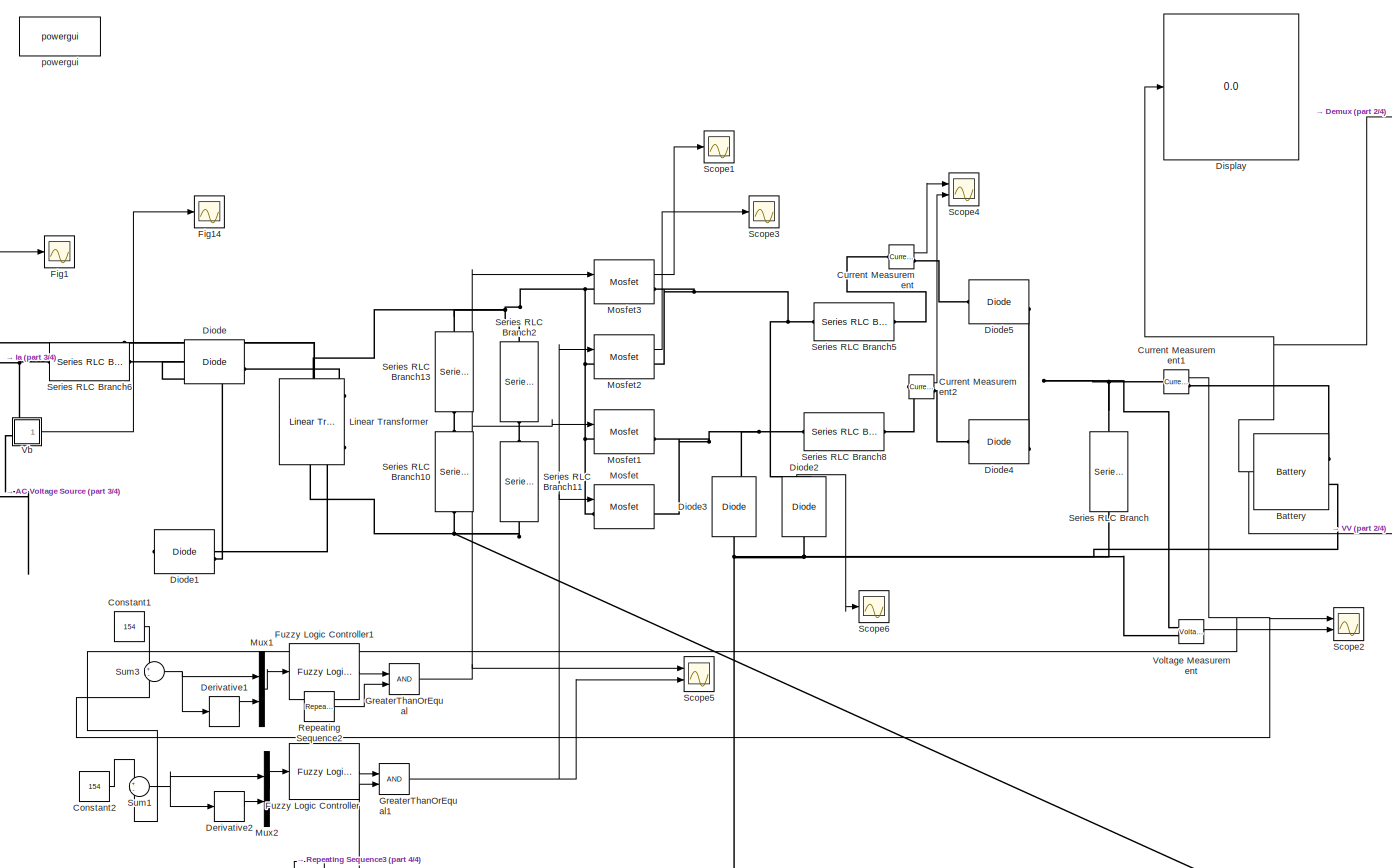
[diagram: root canvas - part 1/4, center side, full height]
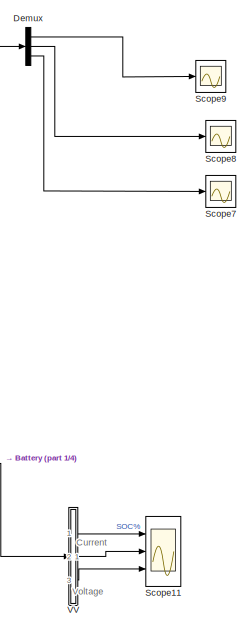
[diagram: root canvas - part 2/4, middle right region]
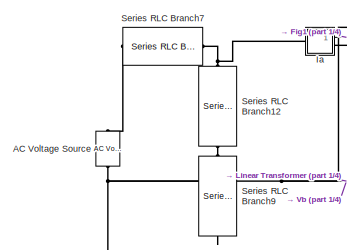
[diagram: root canvas - part 3/4, middle left region]
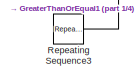
[diagram: root canvas - part 4/4, bottom center region]
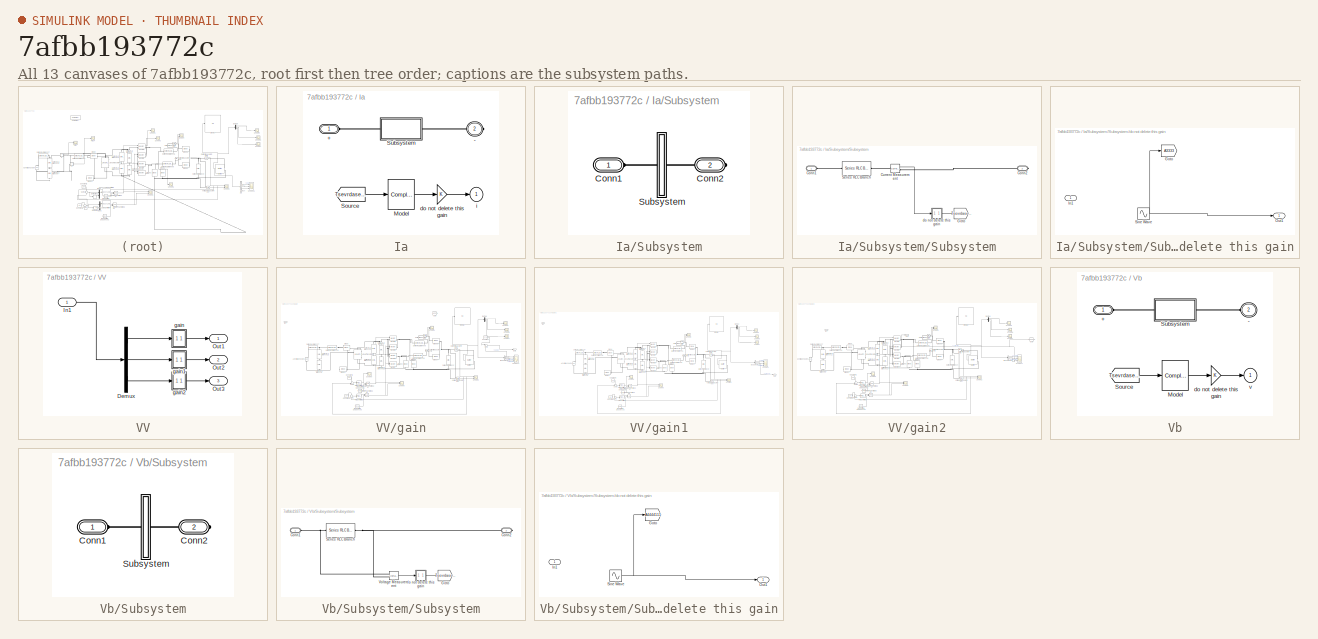
[diagram: thumbnail index - all 13 canvases of the model, root first then tree order]
MODEL slx_7afbb193772c
KIND model
CONFIG AbsTol = auto
CONFIG EnableMultiTasking = off
CONFIG FixedStep = auto
CONFIG MaxStep = auto
CONFIG MinStep = auto
CONFIG RelTol = 1e-3
CONFIG SampleTimeConstraint = Unconstrained
CONFIG SolverName = VariableStepAuto
CONFIG StartTime = 0.0
CONFIG StopTime = 1
BLOCK [Reference] AC Voltage Source  REF=spsACVoltageSourceLib/AC Voltage Source
  Ports = [0, 0, 0, 0, 0, 1, 1]
  SourceBlock = spsACVoltageSourceLib/AC Voltage Source
  SourceProductBaseCode = PS
  SourceType = AC Voltage Source
BLOCK [Reference] Battery  REF=spsBatteryLib/Battery
  Ports = [0, 1, 0, 0, 0, 2]
  SourceBlock = spsBatteryLib/Battery
  SourceProductBaseCode = PS
  SourceType = Battery
BLOCK [Constant] Constant1
  Value = 154
BLOCK [Constant] Constant2
  Value = 154
BLOCK [Reference] Current Measurement  REF=spsCurrentMeasurementLib/Current Measurement
  Ports = [0, 1, 0, 0, 0, 1, 1]
  SourceBlock = spsCurrentMeasurementLib/Current Measurement
  SourceProductBaseCode = PS
  SourceType = Current Measurement
  UserDataPersistent = on
BLOCK [Reference] Current Measurement1  REF=spsCurrentMeasurementLib/Current Measurement
  Ports = [0, 1, 0, 0, 0, 1, 1]
  SourceBlock = spsCurrentMeasurementLib/Current Measurement
  SourceProductBaseCode = PS
  SourceType = Current Measurement
  UserDataPersistent = on
BLOCK [Reference] Current Measurement2  REF=spsCurrentMeasurementLib/Current Measurement
  Ports = [0, 1, 0, 0, 0, 1, 1]
  SourceBlock = spsCurrentMeasurementLib/Current Measurement
  SourceProductBaseCode = PS
  SourceType = Current Measurement
  UserDataPersistent = on
BLOCK [Demux] Demux
  Outputs = 3
  Ports = [1, 3]
BLOCK [Derivative] Derivative1
BLOCK [Derivative] Derivative2
BLOCK [Reference] Diode  REF=spsDiodeLib/Diode
  Ports = [0, 1, 0, 0, 0, 1, 1]
  SourceBlock = spsDiodeLib/Diode
  SourceProductBaseCode = PS
  SourceType = Diode
BLOCK [Reference] Diode1  REF=spsDiodeLib/Diode
  NameLocation = top
  Ports = [0, 1, 0, 0, 0, 1, 1]
  SourceBlock = spsDiodeLib/Diode
  SourceProductBaseCode = PS
  SourceType = Diode
BLOCK [Reference] Diode2  REF=spsDiodeLib/Diode
  NameLocation = right
  Ports = [0, 1, 0, 0, 0, 1, 1]
  SourceBlock = spsDiodeLib/Diode
  SourceProductBaseCode = PS
  SourceType = Diode
BLOCK [Reference] Diode3  REF=spsDiodeLib/Diode
  NameLocation = right
  Ports = [0, 1, 0, 0, 0, 1, 1]
  SourceBlock = spsDiodeLib/Diode
  SourceProductBaseCode = PS
  SourceType = Diode
BLOCK [Reference] Diode4  REF=spsDiodeLib/Diode
  Ports = [0, 1, 0, 0, 0, 1, 1]
  SourceBlock = spsDiodeLib/Diode
  SourceProductBaseCode = PS
  SourceType = Diode
BLOCK [Reference] Diode5  REF=spsDiodeLib/Diode
  Ports = [0, 1, 0, 0, 0, 1, 1]
  SourceBlock = spsDiodeLib/Diode
  SourceProductBaseCode = PS
  SourceType = Diode
BLOCK [Display] Display
  Decimation = 1
  Ports = [1]
BLOCK [Scope] Fig1
  Floating = off
  NumInputPorts = 1
  Ports = [1]
  ScopeSpecificationString = Simulink.scopes.TimeScopeBlockCfg('CurrentConfiguration', extmgr.ConfigurationSet(extmgr.Configuration('Core','General UI',true,'FigureColor',[1 1 1]),extmgr.Configuration('Core','Source UI',true),extmgr.Configuration('Sources','WiredSimulink',true,'DataLoggingVariableName','gridcurfuz','DataLogging',true),extmgr.Configuration('Visuals','Time Domain',true,'SerializedDisplays',{struct('MinYLimReal'...<+1578ch>
BLOCK [Scope] Fig14
  Floating = off
  NumInputPorts = 1
  Ports = [1]
  ScopeSpecificationString = Simulink.scopes.TimeScopeBlockCfg('CurrentConfiguration', extmgr.ConfigurationSet(extmgr.Configuration('Core','General UI',true,'FigureColor',[1 1 1]),extmgr.Configuration('Core','Source UI',true),extmgr.Configuration('Sources','WiredSimulink',true,'DataLoggingVariableName','gridvfuz','DataLogging',true),extmgr.Configuration('Visuals','Time Domain',true,'SerializedDisplays',{struct('MinYLimReal','...<+1566ch>
BLOCK [Reference] Fuzzy Logic Controller  REF=fuzblock/Fuzzy Logic   (lib defined in mdl_858b3b3e7478)
Controller
  Ports = [1, 1]
  SourceBlock = fuzblock/Fuzzy Logic \nController
  SourceProductBaseCode = FL
  SourceType = Fuzzy Inference System
BLOCK [Reference] Fuzzy Logic Controller1  REF=fuzblock/Fuzzy Logic   (lib defined in mdl_858b3b3e7478)
Controller
  Ports = [1, 1]
  SourceBlock = fuzblock/Fuzzy Logic \nController
  SourceProductBaseCode = FL
  SourceType = Fuzzy Inference System
BLOCK [RelationalOperator] GreaterThanOrEqual
  InputSameDT = off
  OutDataTypeStr = boolean
  Ports = [2, 1]
  RndMeth = Simplest
BLOCK [RelationalOperator] GreaterThanOrEqual1
  InputSameDT = off
  OutDataTypeStr = boolean
  Ports = [2, 1]
  RndMeth = Simplest
BLOCK [SubSystem] Ia
  CloseFcn = sps_rtmsupport('CloseFcn',gcbh);
  CopyFcn = sps_rtmsupport('CopyFcn',gcbh); powericon('psbloadfunction',gcb,'Measurement Block','UpdateGotoTag');
  DeleteFcn = sps_rtmsupport('DeleteFcn',gcbh);
  DialogController = POWERSYS.PowerSysDialog
  LoadFcn = sps_rtmsupport('LoadFcn',gcbh);
  ModelCloseFcn = sps_rtmsupport('ModelCloseFcn',gcbh);
  OpenFcn = sps_rtmsupport('OpenFcn',gcbh, [1 -2]);
  Ports = [0, 1, 0, 0, 0, 1, 1]
  PostSaveFcn = sps_rtmsupport('PostSaveFcn',gcbh);
  PreCopyFcn = sps_rtmsupport('PreCopyFcn',gcbh);
  PreDeleteFcn = sps_rtmsupport('PreDeleteFcn',gcbh);
  PreSaveFcn = sps_rtmsupport('PreSaveFcn',gcbh);
  RequestExecContextInheritance = off
  StartFcn = sps_rtmsupport('StartFcn',gcbh);
  StopFcn = sps_rtmsupport('StopFcn',gcbh);
  UndoDeleteFcn = sps_rtmsupport('UndoDeleteFcn',gcbh);
  UserDataPersistent = on
BLOCK [PMIOPort] Ia/+
  Side = Left
BLOCK [PMIOPort] Ia/-
  Port = 2
  Side = Right
BLOCK [Reference] Ia/Model  REF=spsMeasurementModel/Complex
  Ports = [1, 1]
  SourceBlock = spsMeasurementModel/Complex
  SourceProductBaseCode = PS
  SourceType = SubSystem
BLOCK [From] Ia/Source
  GotoTag = Tsevrdaseffgv
  TagVisibility = global
BLOCK [SubSystem] Ia/Subsystem
  Ports = [0, 0, 0, 0, 0, 1, 1]
  RequestExecContextInheritance = off
BLOCK [PMIOPort] Ia/Subsystem/Conn1
  Side = Left
BLOCK [PMIOPort] Ia/Subsystem/Conn2
  Port = 2
  Side = Right
BLOCK [SubSystem] Ia/Subsystem/Subsystem
  Permissions = NoReadOrWrite
  Ports = [0, 0, 0, 0, 0, 1, 1]
  RequestExecContextInheritance = off
BLOCK [PMIOPort] Ia/Subsystem/Subsystem/Conn1
  Side = Left
BLOCK [PMIOPort] Ia/Subsystem/Subsystem/Conn2
  Port = 2
  Side = Right
BLOCK [Reference] Ia/Subsystem/Subsystem/Current Measurement  REF=spsCurrentMeasurementLib/Current Measurement
  Ports = [0, 1, 0, 0, 0, 1, 1]
  SourceBlock = spsCurrentMeasurementLib/Current Measurement
  SourceProductBaseCode = PS
  SourceType = Current Measurement
  UserDataPersistent = on
BLOCK [Goto] Ia/Subsystem/Subsystem/Goto
  GotoTag = Tsevrdaseffgv
  TagVisibility = global
BLOCK [Reference] Ia/Subsystem/Subsystem/Series RLC Branch  REF=spsSeriesRLCBranchLib/Series RLC Branch
  Ports = [0, 0, 0, 0, 0, 1, 1]
  SourceBlock = spsSeriesRLCBranchLib/Series RLC Branch
  SourceProductBaseCode = PS
  SourceType = Series RLC Branch
BLOCK [SubSystem] Ia/Subsystem/Subsystem/do not delete this gain
  Permissions = NoReadOrWrite
  Ports = [1, 1]
  RequestExecContextInheritance = off
BLOCK [Goto] Ia/Subsystem/Subsystem/do not delete this gain/Goto
  GotoTag = A3333
  TagVisibility = global
BLOCK [Inport] Ia/Subsystem/Subsystem/do not delete this gain/In1
BLOCK [Outport] Ia/Subsystem/Subsystem/do not delete this gain/Out1
BLOCK [Sin] Ia/Subsystem/Subsystem/do not delete this gain/Sine Wave
  Frequency = 2*pi*50.1
  Ports = [0, 1]
  SampleTime = 50e-6
BLOCK [Gain] Ia/do not delete this gain
BLOCK [Outport] Ia/i
  InitialOutput = 0
BLOCK [Reference] Linear Transformer  REF=spsLinearTransformerLib/Linear Transformer
  NameLocation = top
  Ports = [0, 0, 0, 0, 0, 2, 4]
  SourceBlock = spsLinearTransformerLib/Linear Transformer
  SourceProductBaseCode = PS
  SourceType = Linear Transformer
BLOCK [Reference] Mosfet  REF=spsMosfetLib/Mosfet
  Ports = [1, 1, 0, 0, 0, 1, 1]
  SourceBlock = spsMosfetLib/Mosfet
  SourceProductBaseCode = PS
  SourceType = Mosfet
BLOCK [Reference] Mosfet1  REF=spsMosfetLib/Mosfet
  Ports = [1, 1, 0, 0, 0, 1, 1]
  SourceBlock = spsMosfetLib/Mosfet
  SourceProductBaseCode = PS
  SourceType = Mosfet
BLOCK [Reference] Mosfet2  REF=spsMosfetLib/Mosfet
  Ports = [1, 1, 0, 0, 0, 1, 1]
  SourceBlock = spsMosfetLib/Mosfet
  SourceProductBaseCode = PS
  SourceType = Mosfet
BLOCK [Reference] Mosfet3  REF=spsMosfetLib/Mosfet
  Ports = [1, 1, 0, 0, 0, 1, 1]
  SourceBlock = spsMosfetLib/Mosfet
  SourceProductBaseCode = PS
  SourceType = Mosfet
BLOCK [Mux] Mux1
  DisplayOption = bar
  Inputs = 2
  Ports = [2, 1]
BLOCK [Mux] Mux2
  DisplayOption = bar
  Inputs = 2
  Ports = [2, 1]
BLOCK [Reference] Repeating Sequence2  REF=simulink/Sources/Repeating
Sequence
  Ports = [0, 1]
  SourceBlock = simulink/Sources/Repeating\nSequence
  SourceProductBaseCode = SL
  SourceType = Repeating table
BLOCK [Reference] Repeating Sequence3  REF=simulink/Sources/Repeating
Sequence
  Ports = [0, 1]
  SourceBlock = simulink/Sources/Repeating\nSequence
  SourceProductBaseCode = SL
  SourceType = Repeating table
BLOCK [Scope] Scope1
  Floating = off
  NumInputPorts = 1
  Ports = [1]
  ScopeSpecificationString = Simulink.scopes.TimeScopeBlockCfg('CurrentConfiguration', extmgr.ConfigurationSet(extmgr.Configuration('Core','General UI',true),extmgr.Configuration('Core','Source UI',true),extmgr.Configuration('Sources','WiredSimulink',true,'DataLoggingVariableName','ScopeData1'),extmgr.Configuration('Visuals','Time Domain',true,'SerializedDisplays',{struct('MinYLimReal','-0.11201','MaxYLimReal','0.60587','YLab...<+1459ch>
BLOCK [Scope] Scope11
  Floating = off
  NumInputPorts = 3
  Ports = [3]
  ScopeSpecificationString = Simulink.scopes.TimeScopeBlockCfg('CurrentConfiguration', extmgr.ConfigurationSet(extmgr.Configuration('Core','General UI',true,'FigureColor',[1 1 1]),extmgr.Configuration('Core','Source UI',true),extmgr.Configuration('Sources','WiredSimulink',true,'DataLoggingVariableName','ScopeData2'),extmgr.Configuration('Visuals','Time Domain',true,'SerializedDisplays',{struct('MinYLimReal','60.76375','MaxYLi...<+3077ch>
BLOCK [Scope] Scope2
  Floating = off
  NumInputPorts = 2
  Ports = [2]
  ScopeSpecificationString = Simulink.scopes.TimeScopeBlockCfg('CurrentConfiguration', extmgr.ConfigurationSet(extmgr.Configuration('Core','General UI',true),extmgr.Configuration('Core','Source UI',true),extmgr.Configuration('Sources','WiredSimulink',true,'DataLoggingVariableName','ScopeData2'),extmgr.Configuration('Visuals','Time Domain',true,'SerializedDisplays',{struct('MinYLimReal','-24.23531','MaxYLimReal','227.49228','Y...<+2171ch>
BLOCK [Scope] Scope3
  Floating = off
  NumInputPorts = 1
  Ports = [1]
  ScopeSpecificationString = Simulink.scopes.TimeScopeBlockCfg('CurrentConfiguration', extmgr.ConfigurationSet(extmgr.Configuration('Core','General UI',true),extmgr.Configuration('Core','Source UI',true),extmgr.Configuration('Sources','WiredSimulink',true,'DataLoggingVariableName','ScopeData2'),extmgr.Configuration('Visuals','Time Domain',true,'SerializedDisplays',{struct('MinYLimReal','59.99956','MaxYLimReal','60.004','YLabe...<+1502ch>
BLOCK [Scope] Scope4
  Floating = off
  NumInputPorts = 2
  Ports = [2]
  ScopeSpecificationString = Simulink.scopes.TimeScopeBlockCfg('CurrentConfiguration', extmgr.ConfigurationSet(extmgr.Configuration('Core','General UI',true),extmgr.Configuration('Core','Source UI',true),extmgr.Configuration('Sources','WiredSimulink',true,'DataLoggingVariableName','ScopeData2'),extmgr.Configuration('Visuals','Time Domain',true,'SerializedDisplays',{struct('MinYLimReal','-11.93892','MaxYLimReal','60.31008','YL...<+2154ch>
BLOCK [Scope] Scope5
  Floating = off
  NumInputPorts = 2
  Ports = [2]
  ScopeSpecificationString = Simulink.scopes.TimeScopeBlockCfg('CurrentConfiguration', extmgr.ConfigurationSet(extmgr.Configuration('Core','General UI',true),extmgr.Configuration('Core','Source UI',true),extmgr.Configuration('Sources','WiredSimulink',true,'DataLoggingVariableName','ScopeData1'),extmgr.Configuration('Visuals','Time Domain',true,'SerializedDisplays',{struct('MinYLimReal','-0.125','MaxYLimReal','1.125','YLabelRe...<+2099ch>
BLOCK [Scope] Scope6
  Floating = off
  NumInputPorts = 1
  Ports = [1]
  ScopeSpecificationString = Simulink.scopes.TimeScopeBlockCfg('CurrentConfiguration', extmgr.ConfigurationSet(extmgr.Configuration('Core','General UI',true),extmgr.Configuration('Core','Source UI',true),extmgr.Configuration('Sources','WiredSimulink',true,'DataLoggingVariableName','ScopeData3','DataLogging',true),extmgr.Configuration('Visuals','Time Domain',true,'SerializedDisplays',{struct('MinYLimReal','59.99956','MaxYLimRe...<+1481ch>
BLOCK [Scope] Scope7
  Floating = off
  NumInputPorts = 1
  Ports = [1]
  ScopeSpecificationString = Simulink.scopes.TimeScopeBlockCfg('CurrentConfiguration', extmgr.ConfigurationSet(extmgr.Configuration('Core','General UI',true),extmgr.Configuration('Core','Source UI',true),extmgr.Configuration('Sources','WiredSimulink',true,'DataLoggingVariableName','ScopeData1'),extmgr.Configuration('Visuals','Time Domain',true,'SerializedDisplays',{struct('MinYLimReal','37.00725','MaxYLimReal','161.43467','YL...<+1474ch>
BLOCK [Scope] Scope8
  Floating = off
  NumInputPorts = 1
  Ports = [1]
  ScopeSpecificationString = Simulink.scopes.TimeScopeBlockCfg('CurrentConfiguration', extmgr.ConfigurationSet(extmgr.Configuration('Core','General UI',true),extmgr.Configuration('Core','Source UI',true),extmgr.Configuration('Sources','WiredSimulink',true,'DataLoggingVariableName','ScopeData2'),extmgr.Configuration('Visuals','Time Domain',true,'SerializedDisplays',{struct('MinYLimReal','-84.95408','MaxYLimReal','23.55564','YL...<+1472ch>
BLOCK [Scope] Scope9
  Floating = off
  NumInputPorts = 1
  Ports = [1]
  ScopeSpecificationString = Simulink.scopes.TimeScopeBlockCfg('CurrentConfiguration', extmgr.ConfigurationSet(extmgr.Configuration('Core','General UI',true),extmgr.Configuration('Core','Source UI',true),extmgr.Configuration('Sources','WiredSimulink',true,'DataLoggingVariableName','ScopeData3'),extmgr.Configuration('Visuals','Time Domain',true,'SerializedDisplays',{struct('MinYLimReal','59.99956','MaxYLimReal','60.004','YLabe...<+1462ch>
BLOCK [Reference] Series RLC Branch  REF=spsSeriesRLCBranchLib/Series RLC Branch
  NameLocation = left
  Ports = [0, 0, 0, 0, 0, 1, 1]
  SourceBlock = spsSeriesRLCBranchLib/Series RLC Branch
  SourceProductBaseCode = PS
  SourceType = Series RLC Branch
BLOCK [Reference] Series RLC Branch10  REF=spsSeriesRLCBranchLib/Series RLC Branch
  NameLocation = left
  Ports = [0, 0, 0, 0, 0, 1, 1]
  SourceBlock = spsSeriesRLCBranchLib/Series RLC Branch
  SourceProductBaseCode = PS
  SourceType = Series RLC Branch
BLOCK [Reference] Series RLC Branch11  REF=spsSeriesRLCBranchLib/Series RLC Branch
  NameLocation = left
  Ports = [0, 0, 0, 0, 0, 1, 1]
  SourceBlock = spsSeriesRLCBranchLib/Series RLC Branch
  SourceProductBaseCode = PS
  SourceType = Series RLC Branch
BLOCK [Reference] Series RLC Branch12  REF=spsSeriesRLCBranchLib/Series RLC Branch
  NameLocation = left
  Ports = [0, 0, 0, 0, 0, 1, 1]
  SourceBlock = spsSeriesRLCBranchLib/Series RLC Branch
  SourceProductBaseCode = PS
  SourceType = Series RLC Branch
BLOCK [Reference] Series RLC Branch13  REF=spsSeriesRLCBranchLib/Series RLC Branch
  NameLocation = left
  Ports = [0, 0, 0, 0, 0, 1, 1]
  SourceBlock = spsSeriesRLCBranchLib/Series RLC Branch
  SourceProductBaseCode = PS
  SourceType = Series RLC Branch
BLOCK [Reference] Series RLC Branch2  REF=spsSeriesRLCBranchLib/Series RLC Branch
  NameLocation = left
  Ports = [0, 0, 0, 0, 0, 1, 1]
  SourceBlock = spsSeriesRLCBranchLib/Series RLC Branch
  SourceProductBaseCode = PS
  SourceType = Series RLC Branch
BLOCK [Reference] Series RLC Branch5  REF=spsSeriesRLCBranchLib/Series RLC Branch
  Ports = [0, 0, 0, 0, 0, 1, 1]
  SourceBlock = spsSeriesRLCBranchLib/Series RLC Branch
  SourceProductBaseCode = PS
  SourceType = Series RLC Branch
BLOCK [Reference] Series RLC Branch6  REF=spsSeriesRLCBranchLib/Series RLC Branch
  Ports = [0, 0, 0, 0, 0, 1, 1]
  SourceBlock = spsSeriesRLCBranchLib/Series RLC Branch
  SourceProductBaseCode = PS
  SourceType = Series RLC Branch
BLOCK [Reference] Series RLC Branch7  REF=spsSeriesRLCBranchLib/Series RLC Branch
  Ports = [0, 0, 0, 0, 0, 1, 1]
  SourceBlock = spsSeriesRLCBranchLib/Series RLC Branch
  SourceProductBaseCode = PS
  SourceType = Series RLC Branch
BLOCK [Reference] Series RLC Branch8  REF=spsSeriesRLCBranchLib/Series RLC Branch
  Ports = [0, 0, 0, 0, 0, 1, 1]
  SourceBlock = spsSeriesRLCBranchLib/Series RLC Branch
  SourceProductBaseCode = PS
  SourceType = Series RLC Branch
BLOCK [Reference] Series RLC Branch9  REF=spsSeriesRLCBranchLib/Series RLC Branch
  NameLocation = left
  Ports = [0, 0, 0, 0, 0, 1, 1]
  SourceBlock = spsSeriesRLCBranchLib/Series RLC Branch
  SourceProductBaseCode = PS
  SourceType = Series RLC Branch
BLOCK [Sum] Sum1
  Inputs = +-
  Ports = [2, 1]
BLOCK [Sum] Sum3
  Inputs = +-
  Ports = [2, 1]
BLOCK [SubSystem] VV
  Ports = [1, 3]
  RequestExecContextInheritance = off
BLOCK [Demux] VV/Demux
  Outputs = 3
  Ports = [1, 3]
BLOCK [Inport] VV/In1
BLOCK [Outport] VV/Out1
BLOCK [Outport] VV/Out2
  Port = 2
BLOCK [Outport] VV/Out3
  Port = 3
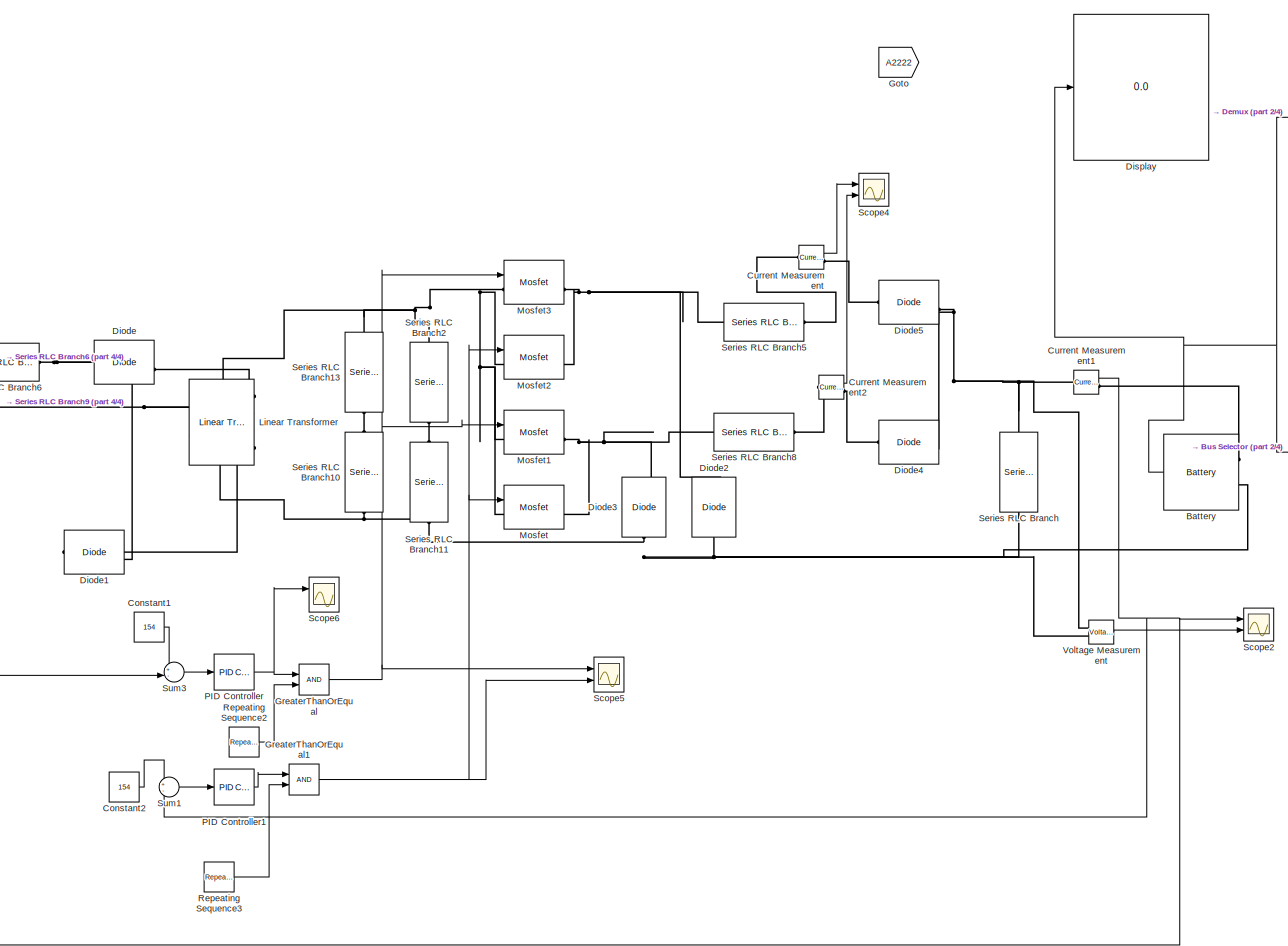
[diagram: VV/gain - part 1/4, center side, full height]
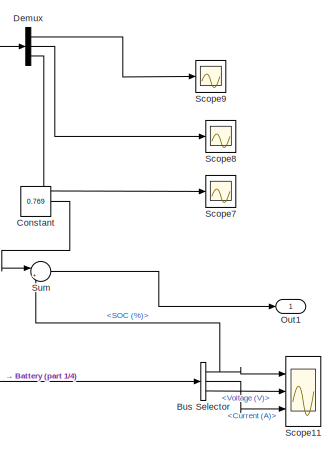
[diagram: VV/gain - part 2/4, top right region]
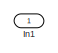
[diagram: VV/gain - part 3/4, top left region]
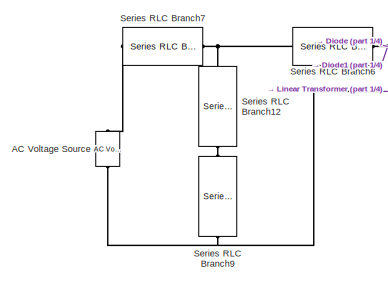
[diagram: VV/gain - part 4/4, middle left region]
BLOCK [SubSystem] VV/gain
  Permissions = NoReadOrWrite
  Ports = [1, 1]
  RequestExecContextInheritance = off
BLOCK [Reference] VV/gain/AC Voltage Source  REF=spsACVoltageSourceLib/AC Voltage Source
  Ports = [0, 0, 0, 0, 0, 1, 1]
  SourceBlock = spsACVoltageSourceLib/AC Voltage Source
  SourceProductBaseCode = PS
  SourceType = AC Voltage Source
BLOCK [Reference] VV/gain/Battery  REF=spsBatteryLib/Battery
  Ports = [0, 1, 0, 0, 0, 2]
  SourceBlock = spsBatteryLib/Battery
  SourceProductBaseCode = PS
  SourceType = Battery
BLOCK [BusSelector] VV/gain/Bus Selector
  OutputSignals = SOC (%),Current (A),Voltage (V)
  Ports = [1, 3]
BLOCK [Constant] VV/gain/Constant
  Value = 0.769
BLOCK [Constant] VV/gain/Constant1
  Value = 154
BLOCK [Constant] VV/gain/Constant2
  Value = 154
BLOCK [Reference] VV/gain/Current Measurement  REF=spsCurrentMeasurementLib/Current Measurement
  Ports = [0, 1, 0, 0, 0, 1, 1]
  SourceBlock = spsCurrentMeasurementLib/Current Measurement
  SourceProductBaseCode = PS
  SourceType = Current Measurement
  UserDataPersistent = on
BLOCK [Reference] VV/gain/Current Measurement1  REF=spsCurrentMeasurementLib/Current Measurement
  Ports = [0, 1, 0, 0, 0, 1, 1]
  SourceBlock = spsCurrentMeasurementLib/Current Measurement
  SourceProductBaseCode = PS
  SourceType = Current Measurement
  UserDataPersistent = on
BLOCK [Reference] VV/gain/Current Measurement2  REF=spsCurrentMeasurementLib/Current Measurement
  Ports = [0, 1, 0, 0, 0, 1, 1]
  SourceBlock = spsCurrentMeasurementLib/Current Measurement
  SourceProductBaseCode = PS
  SourceType = Current Measurement
  UserDataPersistent = on
BLOCK [Demux] VV/gain/Demux
  Outputs = 3
  Ports = [1, 3]
BLOCK [Reference] VV/gain/Diode  REF=spsDiodeLib/Diode
  Ports = [0, 1, 0, 0, 0, 1, 1]
  SourceBlock = spsDiodeLib/Diode
  SourceProductBaseCode = PS
  SourceType = Diode
BLOCK [Reference] VV/gain/Diode1  REF=spsDiodeLib/Diode
  NameLocation = top
  Ports = [0, 1, 0, 0, 0, 1, 1]
  SourceBlock = spsDiodeLib/Diode
  SourceProductBaseCode = PS
  SourceType = Diode
BLOCK [Reference] VV/gain/Diode2  REF=spsDiodeLib/Diode
  NameLocation = right
  Ports = [0, 1, 0, 0, 0, 1, 1]
  SourceBlock = spsDiodeLib/Diode
  SourceProductBaseCode = PS
  SourceType = Diode
BLOCK [Reference] VV/gain/Diode3  REF=spsDiodeLib/Diode
  NameLocation = right
  Ports = [0, 1, 0, 0, 0, 1, 1]
  SourceBlock = spsDiodeLib/Diode
  SourceProductBaseCode = PS
  SourceType = Diode
BLOCK [Reference] VV/gain/Diode4  REF=spsDiodeLib/Diode
  Ports = [0, 1, 0, 0, 0, 1, 1]
  SourceBlock = spsDiodeLib/Diode
  SourceProductBaseCode = PS
  SourceType = Diode
BLOCK [Reference] VV/gain/Diode5  REF=spsDiodeLib/Diode
  Ports = [0, 1, 0, 0, 0, 1, 1]
  SourceBlock = spsDiodeLib/Diode
  SourceProductBaseCode = PS
  SourceType = Diode
BLOCK [Display] VV/gain/Display
  Decimation = 1
  Ports = [1]
BLOCK [Goto] VV/gain/Goto
  GotoTag = A2222
  TagVisibility = global
BLOCK [RelationalOperator] VV/gain/GreaterThanOrEqual
  InputSameDT = off
  OutDataTypeStr = boolean
  Ports = [2, 1]
  RndMeth = Simplest
BLOCK [RelationalOperator] VV/gain/GreaterThanOrEqual1
  InputSameDT = off
  OutDataTypeStr = boolean
  Ports = [2, 1]
  RndMeth = Simplest
BLOCK [Inport] VV/gain/In1
BLOCK [Reference] VV/gain/Linear Transformer  REF=spsLinearTransformerLib/Linear Transformer
  NameLocation = top
  Ports = [0, 0, 0, 0, 0, 2, 4]
  SourceBlock = spsLinearTransformerLib/Linear Transformer
  SourceProductBaseCode = PS
  SourceType = Linear Transformer
BLOCK [Reference] VV/gain/Mosfet  REF=spsMosfetLib/Mosfet
  Ports = [1, 1, 0, 0, 0, 1, 1]
  SourceBlock = spsMosfetLib/Mosfet
  SourceProductBaseCode = PS
  SourceType = Mosfet
BLOCK [Reference] VV/gain/Mosfet1  REF=spsMosfetLib/Mosfet
  Ports = [1, 1, 0, 0, 0, 1, 1]
  SourceBlock = spsMosfetLib/Mosfet
  SourceProductBaseCode = PS
  SourceType = Mosfet
BLOCK [Reference] VV/gain/Mosfet2  REF=spsMosfetLib/Mosfet
  Ports = [1, 1, 0, 0, 0, 1, 1]
  SourceBlock = spsMosfetLib/Mosfet
  SourceProductBaseCode = PS
  SourceType = Mosfet
BLOCK [Reference] VV/gain/Mosfet3  REF=spsMosfetLib/Mosfet
  Ports = [1, 1, 0, 0, 0, 1, 1]
  SourceBlock = spsMosfetLib/Mosfet
  SourceProductBaseCode = PS
  SourceType = Mosfet
BLOCK [Outport] VV/gain/Out1
BLOCK [Reference] VV/gain/PID Controller  REF=pid_lib/PID Controller
  Ports = [1, 1]
  SourceBlock = pid_lib/PID Controller
  SourceProductBaseCode = SL
  SourceType = PID 1dof
BLOCK [Reference] VV/gain/PID Controller1  REF=pid_lib/PID Controller
  Ports = [1, 1]
  SourceBlock = pid_lib/PID Controller
  SourceProductBaseCode = SL
  SourceType = PID 1dof
BLOCK [Reference] VV/gain/Repeating Sequence2  REF=simulink/Sources/Repeating
Sequence
  Ports = [0, 1]
  SourceBlock = simulink/Sources/Repeating\nSequence
  SourceProductBaseCode = SL
  SourceType = Repeating table
BLOCK [Reference] VV/gain/Repeating Sequence3  REF=simulink/Sources/Repeating
Sequence
  Ports = [0, 1]
  SourceBlock = simulink/Sources/Repeating\nSequence
  SourceProductBaseCode = SL
  SourceType = Repeating table
BLOCK [Scope] VV/gain/Scope11
  Floating = off
  NumInputPorts = 3
  Ports = [3]
  ScopeSpecificationString = Simulink.scopes.TimeScopeBlockCfg('CurrentConfiguration', extmgr.ConfigurationSet(extmgr.Configuration('Core','General UI',true,'FigureColor',[1 1 1]),extmgr.Configuration('Core','Source UI',true),extmgr.Configuration('Sources','WiredSimulink',true,'DataLoggingVariableName','ScopeData25'),extmgr.Configuration('Visuals','Time Domain',true,'SerializedDisplays',{struct('MinYLimReal','59.99475','MaxYL...<+3139ch>
BLOCK [Scope] VV/gain/Scope2
  Floating = off
  NumInputPorts = 2
  Ports = [2]
  ScopeSpecificationString = Simulink.scopes.TimeScopeBlockCfg('CurrentConfiguration', extmgr.ConfigurationSet(extmgr.Configuration('Core','General UI',true),extmgr.Configuration('Core','Source UI',true),extmgr.Configuration('Sources','WiredSimulink',true,'DataLoggingVariableName','ScopeData26'),extmgr.Configuration('Visuals','Time Domain',true,'SerializedDisplays',{struct('MinYLimReal','-24.23531','MaxYLimReal','227.49228','...<+2172ch>
BLOCK [Scope] VV/gain/Scope4
  Floating = off
  NumInputPorts = 2
  Ports = [2]
  ScopeSpecificationString = Simulink.scopes.TimeScopeBlockCfg('CurrentConfiguration', extmgr.ConfigurationSet(extmgr.Configuration('Core','General UI',true),extmgr.Configuration('Core','Source UI',true),extmgr.Configuration('Sources','WiredSimulink',true,'DataLoggingVariableName','ScopeData27'),extmgr.Configuration('Visuals','Time Domain',true,'SerializedDisplays',{struct('MinYLimReal','-13.71108','MaxYLimReal','122.41334','...<+2157ch>
BLOCK [Scope] VV/gain/Scope5
  Floating = off
  NumInputPorts = 2
  Ports = [2]
  ScopeSpecificationString = Simulink.scopes.TimeScopeBlockCfg('CurrentConfiguration', extmgr.ConfigurationSet(extmgr.Configuration('Core','General UI',true),extmgr.Configuration('Core','Source UI',true),extmgr.Configuration('Sources','WiredSimulink',true,'DataLoggingVariableName','ScopeData28'),extmgr.Configuration('Visuals','Time Domain',true,'SerializedDisplays',{struct('MinYLimReal','-0.125','MaxYLimReal','1.125','YLabelR...<+2099ch>
BLOCK [Scope] VV/gain/Scope6
  Floating = off
  NumInputPorts = 2
  Ports = [2]
  ScopeSpecificationString = Simulink.scopes.TimeScopeBlockCfg('CurrentConfiguration', extmgr.ConfigurationSet(extmgr.Configuration('Core','General UI',true),extmgr.Configuration('Core','Source UI',true),extmgr.Configuration('Sources','WiredSimulink',true,'DataLoggingVariableName','ScopeData29'),extmgr.Configuration('Visuals','Time Domain',true,'SerializedDisplays',{struct('MinYLimReal','-0.125','MaxYLimReal','1.125','YLabelR...<+1535ch>
BLOCK [Scope] VV/gain/Scope7
  Floating = off
  NumInputPorts = 1
  Ports = [1]
  ScopeSpecificationString = Simulink.scopes.TimeScopeBlockCfg('CurrentConfiguration', extmgr.ConfigurationSet(extmgr.Configuration('Core','General UI',true),extmgr.Configuration('Core','Source UI',true),extmgr.Configuration('Sources','WiredSimulink',true,'DataLoggingVariableName','ScopeData30','DataLogging',true),extmgr.Configuration('Visuals','Time Domain',true,'SerializedDisplays',{struct('MinYLimReal','-15.26027','MaxYLim...<+1494ch>
BLOCK [Scope] VV/gain/Scope8
  Floating = off
  NumInputPorts = 1
  Ports = [1]
  ScopeSpecificationString = Simulink.scopes.TimeScopeBlockCfg('CurrentConfiguration', extmgr.ConfigurationSet(extmgr.Configuration('Core','General UI',true),extmgr.Configuration('Core','Source UI',true),extmgr.Configuration('Sources','WiredSimulink',true,'DataLoggingVariableName','ScopeData31','DataLogging',true),extmgr.Configuration('Visuals','Time Domain',true,'SerializedDisplays',{struct('MinYLimReal','-1621.83369','MaxYL...<+1504ch>
BLOCK [Scope] VV/gain/Scope9
  Floating = off
  NumInputPorts = 1
  Ports = [1]
  ScopeSpecificationString = Simulink.scopes.TimeScopeBlockCfg('CurrentConfiguration', extmgr.ConfigurationSet(extmgr.Configuration('Core','General UI',true),extmgr.Configuration('Core','Source UI',true),extmgr.Configuration('Sources','WiredSimulink',true,'DataLoggingVariableName','ScopeData32','DataLogging',true),extmgr.Configuration('Visuals','Time Domain',true,'SerializedDisplays',{struct('MinYLimReal','-15.26027','MaxYLim...<+1494ch>
BLOCK [Reference] VV/gain/Series RLC Branch  REF=spsSeriesRLCBranchLib/Series RLC Branch
  NameLocation = left
  Ports = [0, 0, 0, 0, 0, 1, 1]
  SourceBlock = spsSeriesRLCBranchLib/Series RLC Branch
  SourceProductBaseCode = PS
  SourceType = Series RLC Branch
BLOCK [Reference] VV/gain/Series RLC Branch10  REF=spsSeriesRLCBranchLib/Series RLC Branch
  NameLocation = left
  Ports = [0, 0, 0, 0, 0, 1, 1]
  SourceBlock = spsSeriesRLCBranchLib/Series RLC Branch
  SourceProductBaseCode = PS
  SourceType = Series RLC Branch
BLOCK [Reference] VV/gain/Series RLC Branch11  REF=spsSeriesRLCBranchLib/Series RLC Branch
  NameLocation = left
  Ports = [0, 0, 0, 0, 0, 1, 1]
  SourceBlock = spsSeriesRLCBranchLib/Series RLC Branch
  SourceProductBaseCode = PS
  SourceType = Series RLC Branch
BLOCK [Reference] VV/gain/Series RLC Branch12  REF=spsSeriesRLCBranchLib/Series RLC Branch
  NameLocation = left
  Ports = [0, 0, 0, 0, 0, 1, 1]
  SourceBlock = spsSeriesRLCBranchLib/Series RLC Branch
  SourceProductBaseCode = PS
  SourceType = Series RLC Branch
BLOCK [Reference] VV/gain/Series RLC Branch13  REF=spsSeriesRLCBranchLib/Series RLC Branch
  NameLocation = left
  Ports = [0, 0, 0, 0, 0, 1, 1]
  SourceBlock = spsSeriesRLCBranchLib/Series RLC Branch
  SourceProductBaseCode = PS
  SourceType = Series RLC Branch
BLOCK [Reference] VV/gain/Series RLC Branch2  REF=spsSeriesRLCBranchLib/Series RLC Branch
  NameLocation = left
  Ports = [0, 0, 0, 0, 0, 1, 1]
  SourceBlock = spsSeriesRLCBranchLib/Series RLC Branch
  SourceProductBaseCode = PS
  SourceType = Series RLC Branch
BLOCK [Reference] VV/gain/Series RLC Branch5  REF=spsSeriesRLCBranchLib/Series RLC Branch
  Ports = [0, 0, 0, 0, 0, 1, 1]
  SourceBlock = spsSeriesRLCBranchLib/Series RLC Branch
  SourceProductBaseCode = PS
  SourceType = Series RLC Branch
BLOCK [Reference] VV/gain/Series RLC Branch6  REF=spsSeriesRLCBranchLib/Series RLC Branch
  Ports = [0, 0, 0, 0, 0, 1, 1]
  SourceBlock = spsSeriesRLCBranchLib/Series RLC Branch
  SourceProductBaseCode = PS
  SourceType = Series RLC Branch
BLOCK [Reference] VV/gain/Series RLC Branch7  REF=spsSeriesRLCBranchLib/Series RLC Branch
  Ports = [0, 0, 0, 0, 0, 1, 1]
  SourceBlock = spsSeriesRLCBranchLib/Series RLC Branch
  SourceProductBaseCode = PS
  SourceType = Series RLC Branch
BLOCK [Reference] VV/gain/Series RLC Branch8  REF=spsSeriesRLCBranchLib/Series RLC Branch
  Ports = [0, 0, 0, 0, 0, 1, 1]
  SourceBlock = spsSeriesRLCBranchLib/Series RLC Branch
  SourceProductBaseCode = PS
  SourceType = Series RLC Branch
BLOCK [Reference] VV/gain/Series RLC Branch9  REF=spsSeriesRLCBranchLib/Series RLC Branch
  NameLocation = left
  Ports = [0, 0, 0, 0, 0, 1, 1]
  SourceBlock = spsSeriesRLCBranchLib/Series RLC Branch
  SourceProductBaseCode = PS
  SourceType = Series RLC Branch
BLOCK [Sum] VV/gain/Sum
  Inputs = |++
  Ports = [2, 1]
BLOCK [Sum] VV/gain/Sum1
  Inputs = +-
  Ports = [2, 1]
BLOCK [Sum] VV/gain/Sum3
  Inputs = +-
  Ports = [2, 1]
BLOCK [Reference] VV/gain/Voltage Measurement  REF=spsVoltageMeasurementLib/Voltage Measurement
  Ports = [0, 1, 0, 0, 0, 2]
  SourceBlock = spsVoltageMeasurementLib/Voltage Measurement
  SourceProductBaseCode = PS
  SourceType = Voltage Measurement
  UserDataPersistent = on
BLOCK [SubSystem] VV/gain1
  Permissions = NoReadOrWrite
  Ports = [1, 1]
  RequestExecContextInheritance = off
BLOCK [Reference] VV/gain1/AC Voltage Source  REF=spsACVoltageSourceLib/AC Voltage Source
  Ports = [0, 0, 0, 0, 0, 1, 1]
  SourceBlock = spsACVoltageSourceLib/AC Voltage Source
  SourceProductBaseCode = PS
  SourceType = AC Voltage Source
BLOCK [Reference] VV/gain1/Battery  REF=spsBatteryLib/Battery
  Ports = [0, 1, 0, 0, 0, 2]
  SourceBlock = spsBatteryLib/Battery
  SourceProductBaseCode = PS
  SourceType = Battery
BLOCK [BusSelector] VV/gain1/Bus Selector
  OutputSignals = SOC (%),Current (A),Voltage (V)
  Ports = [1, 3]
BLOCK [Constant] VV/gain1/Constant1
  Value = 154
BLOCK [Constant] VV/gain1/Constant2
  Value = 154
BLOCK [Reference] VV/gain1/Current Measurement  REF=spsCurrentMeasurementLib/Current Measurement
  Ports = [0, 1, 0, 0, 0, 1, 1]
  SourceBlock = spsCurrentMeasurementLib/Current Measurement
  SourceProductBaseCode = PS
  SourceType = Current Measurement
  UserDataPersistent = on
BLOCK [Reference] VV/gain1/Current Measurement1  REF=spsCurrentMeasurementLib/Current Measurement
  Ports = [0, 1, 0, 0, 0, 1, 1]
  SourceBlock = spsCurrentMeasurementLib/Current Measurement
  SourceProductBaseCode = PS
  SourceType = Current Measurement
  UserDataPersistent = on
BLOCK [Reference] VV/gain1/Current Measurement2  REF=spsCurrentMeasurementLib/Current Measurement
  Ports = [0, 1, 0, 0, 0, 1, 1]
  SourceBlock = spsCurrentMeasurementLib/Current Measurement
  SourceProductBaseCode = PS
  SourceType = Current Measurement
  UserDataPersistent = on
BLOCK [Demux] VV/gain1/Demux
  Outputs = 3
  Ports = [1, 3]
BLOCK [Reference] VV/gain1/Diode  REF=spsDiodeLib/Diode
  Ports = [0, 1, 0, 0, 0, 1, 1]
  SourceBlock = spsDiodeLib/Diode
  SourceProductBaseCode = PS
  SourceType = Diode
BLOCK [Reference] VV/gain1/Diode1  REF=spsDiodeLib/Diode
  NameLocation = top
  Ports = [0, 1, 0, 0, 0, 1, 1]
  SourceBlock = spsDiodeLib/Diode
  SourceProductBaseCode = PS
  SourceType = Diode
BLOCK [Reference] VV/gain1/Diode2  REF=spsDiodeLib/Diode
  NameLocation = right
  Ports = [0, 1, 0, 0, 0, 1, 1]
  SourceBlock = spsDiodeLib/Diode
  SourceProductBaseCode = PS
  SourceType = Diode
BLOCK [Reference] VV/gain1/Diode3  REF=spsDiodeLib/Diode
  NameLocation = right
  Ports = [0, 1, 0, 0, 0, 1, 1]
  SourceBlock = spsDiodeLib/Diode
  SourceProductBaseCode = PS
  SourceType = Diode
BLOCK [Reference] VV/gain1/Diode4  REF=spsDiodeLib/Diode
  Ports = [0, 1, 0, 0, 0, 1, 1]
  SourceBlock = spsDiodeLib/Diode
  SourceProductBaseCode = PS
  SourceType = Diode
BLOCK [Reference] VV/gain1/Diode5  REF=spsDiodeLib/Diode
  Ports = [0, 1, 0, 0, 0, 1, 1]
  SourceBlock = spsDiodeLib/Diode
  SourceProductBaseCode = PS
  SourceType = Diode
BLOCK [Display] VV/gain1/Display
  Decimation = 1
  Ports = [1]
BLOCK [RelationalOperator] VV/gain1/GreaterThanOrEqual
  InputSameDT = off
  OutDataTypeStr = boolean
  Ports = [2, 1]
  RndMeth = Simplest
BLOCK [RelationalOperator] VV/gain1/GreaterThanOrEqual1
  InputSameDT = off
  OutDataTypeStr = boolean
  Ports = [2, 1]
  RndMeth = Simplest
BLOCK [Inport] VV/gain1/In1
BLOCK [Reference] VV/gain1/Linear Transformer  REF=spsLinearTransformerLib/Linear Transformer
  NameLocation = top
  Ports = [0, 0, 0, 0, 0, 2, 4]
  SourceBlock = spsLinearTransformerLib/Linear Transformer
  SourceProductBaseCode = PS
  SourceType = Linear Transformer
BLOCK [Reference] VV/gain1/Mosfet  REF=spsMosfetLib/Mosfet
  Ports = [1, 1, 0, 0, 0, 1, 1]
  SourceBlock = spsMosfetLib/Mosfet
  SourceProductBaseCode = PS
  SourceType = Mosfet
BLOCK [Reference] VV/gain1/Mosfet1  REF=spsMosfetLib/Mosfet
  Ports = [1, 1, 0, 0, 0, 1, 1]
  SourceBlock = spsMosfetLib/Mosfet
  SourceProductBaseCode = PS
  SourceType = Mosfet
BLOCK [Reference] VV/gain1/Mosfet2  REF=spsMosfetLib/Mosfet
  Ports = [1, 1, 0, 0, 0, 1, 1]
  SourceBlock = spsMosfetLib/Mosfet
  SourceProductBaseCode = PS
  SourceType = Mosfet
BLOCK [Reference] VV/gain1/Mosfet3  REF=spsMosfetLib/Mosfet
  Ports = [1, 1, 0, 0, 0, 1, 1]
  SourceBlock = spsMosfetLib/Mosfet
  SourceProductBaseCode = PS
  SourceType = Mosfet
BLOCK [Outport] VV/gain1/Out1
BLOCK [Reference] VV/gain1/PID Controller  REF=pid_lib/PID Controller
  Ports = [1, 1]
  SourceBlock = pid_lib/PID Controller
  SourceProductBaseCode = SL
  SourceType = PID 1dof
BLOCK [Reference] VV/gain1/PID Controller1  REF=pid_lib/PID Controller
  Ports = [1, 1]
  SourceBlock = pid_lib/PID Controller
  SourceProductBaseCode = SL
  SourceType = PID 1dof
BLOCK [Reference] VV/gain1/Repeating Sequence2  REF=simulink/Sources/Repeating
Sequence
  Ports = [0, 1]
  SourceBlock = simulink/Sources/Repeating\nSequence
  SourceProductBaseCode = SL
  SourceType = Repeating table
BLOCK [Reference] VV/gain1/Repeating Sequence3  REF=simulink/Sources/Repeating
Sequence
  Ports = [0, 1]
  SourceBlock = simulink/Sources/Repeating\nSequence
  SourceProductBaseCode = SL
  SourceType = Repeating table
BLOCK [Scope] VV/gain1/Scope11
  Floating = off
  NumInputPorts = 3
  Ports = [3]
  ScopeSpecificationString = Simulink.scopes.TimeScopeBlockCfg('CurrentConfiguration', extmgr.ConfigurationSet(extmgr.Configuration('Core','General UI',true,'FigureColor',[1 1 1]),extmgr.Configuration('Core','Source UI',true),extmgr.Configuration('Sources','WiredSimulink',true,'DataLoggingVariableName','ScopeData17'),extmgr.Configuration('Visuals','Time Domain',true,'SerializedDisplays',{struct('MinYLimReal','59.99475','MaxYL...<+3139ch>
BLOCK [Scope] VV/gain1/Scope2
  Floating = off
  NumInputPorts = 2
  Ports = [2]
  ScopeSpecificationString = Simulink.scopes.TimeScopeBlockCfg('CurrentConfiguration', extmgr.ConfigurationSet(extmgr.Configuration('Core','General UI',true),extmgr.Configuration('Core','Source UI',true),extmgr.Configuration('Sources','WiredSimulink',true,'DataLoggingVariableName','ScopeData18'),extmgr.Configuration('Visuals','Time Domain',true,'SerializedDisplays',{struct('MinYLimReal','-24.23531','MaxYLimReal','227.49228','...<+2172ch>
BLOCK [Scope] VV/gain1/Scope4
  Floating = off
  NumInputPorts = 2
  Ports = [2]
  ScopeSpecificationString = Simulink.scopes.TimeScopeBlockCfg('CurrentConfiguration', extmgr.ConfigurationSet(extmgr.Configuration('Core','General UI',true),extmgr.Configuration('Core','Source UI',true),extmgr.Configuration('Sources','WiredSimulink',true,'DataLoggingVariableName','ScopeData19'),extmgr.Configuration('Visuals','Time Domain',true,'SerializedDisplays',{struct('MinYLimReal','-13.71108','MaxYLimReal','122.41334','...<+2157ch>
BLOCK [Scope] VV/gain1/Scope5
  Floating = off
  NumInputPorts = 2
  Ports = [2]
  ScopeSpecificationString = Simulink.scopes.TimeScopeBlockCfg('CurrentConfiguration', extmgr.ConfigurationSet(extmgr.Configuration('Core','General UI',true),extmgr.Configuration('Core','Source UI',true),extmgr.Configuration('Sources','WiredSimulink',true,'DataLoggingVariableName','ScopeData20'),extmgr.Configuration('Visuals','Time Domain',true,'SerializedDisplays',{struct('MinYLimReal','-0.125','MaxYLimReal','1.125','YLabelR...<+2099ch>
BLOCK [Scope] VV/gain1/Scope6
  Floating = off
  NumInputPorts = 2
  Ports = [2]
  ScopeSpecificationString = Simulink.scopes.TimeScopeBlockCfg('CurrentConfiguration', extmgr.ConfigurationSet(extmgr.Configuration('Core','General UI',true),extmgr.Configuration('Core','Source UI',true),extmgr.Configuration('Sources','WiredSimulink',true,'DataLoggingVariableName','ScopeData21'),extmgr.Configuration('Visuals','Time Domain',true,'SerializedDisplays',{struct('MinYLimReal','-0.125','MaxYLimReal','1.125','YLabelR...<+1535ch>
BLOCK [Scope] VV/gain1/Scope7
  Floating = off
  NumInputPorts = 1
  Ports = [1]
  ScopeSpecificationString = Simulink.scopes.TimeScopeBlockCfg('CurrentConfiguration', extmgr.ConfigurationSet(extmgr.Configuration('Core','General UI',true),extmgr.Configuration('Core','Source UI',true),extmgr.Configuration('Sources','WiredSimulink',true,'DataLoggingVariableName','ScopeData22','DataLogging',true),extmgr.Configuration('Visuals','Time Domain',true,'SerializedDisplays',{struct('MinYLimReal','-15.26027','MaxYLim...<+1494ch>
BLOCK [Scope] VV/gain1/Scope8
  Floating = off
  NumInputPorts = 1
  Ports = [1]
  ScopeSpecificationString = Simulink.scopes.TimeScopeBlockCfg('CurrentConfiguration', extmgr.ConfigurationSet(extmgr.Configuration('Core','General UI',true),extmgr.Configuration('Core','Source UI',true),extmgr.Configuration('Sources','WiredSimulink',true,'DataLoggingVariableName','ScopeData23','DataLogging',true),extmgr.Configuration('Visuals','Time Domain',true,'SerializedDisplays',{struct('MinYLimReal','-1621.83369','MaxYL...<+1504ch>
BLOCK [Scope] VV/gain1/Scope9
  Floating = off
  NumInputPorts = 1
  Ports = [1]
  ScopeSpecificationString = Simulink.scopes.TimeScopeBlockCfg('CurrentConfiguration', extmgr.ConfigurationSet(extmgr.Configuration('Core','General UI',true),extmgr.Configuration('Core','Source UI',true),extmgr.Configuration('Sources','WiredSimulink',true,'DataLoggingVariableName','ScopeData24','DataLogging',true),extmgr.Configuration('Visuals','Time Domain',true,'SerializedDisplays',{struct('MinYLimReal','-15.26027','MaxYLim...<+1494ch>
BLOCK [Reference] VV/gain1/Series RLC Branch  REF=spsSeriesRLCBranchLib/Series RLC Branch
  NameLocation = left
  Ports = [0, 0, 0, 0, 0, 1, 1]
  SourceBlock = spsSeriesRLCBranchLib/Series RLC Branch
  SourceProductBaseCode = PS
  SourceType = Series RLC Branch
BLOCK [Reference] VV/gain1/Series RLC Branch10  REF=spsSeriesRLCBranchLib/Series RLC Branch
  NameLocation = left
  Ports = [0, 0, 0, 0, 0, 1, 1]
  SourceBlock = spsSeriesRLCBranchLib/Series RLC Branch
  SourceProductBaseCode = PS
  SourceType = Series RLC Branch
BLOCK [Reference] VV/gain1/Series RLC Branch11  REF=spsSeriesRLCBranchLib/Series RLC Branch
  NameLocation = left
  Ports = [0, 0, 0, 0, 0, 1, 1]
  SourceBlock = spsSeriesRLCBranchLib/Series RLC Branch
  SourceProductBaseCode = PS
  SourceType = Series RLC Branch
BLOCK [Reference] VV/gain1/Series RLC Branch12  REF=spsSeriesRLCBranchLib/Series RLC Branch
  NameLocation = left
  Ports = [0, 0, 0, 0, 0, 1, 1]
  SourceBlock = spsSeriesRLCBranchLib/Series RLC Branch
  SourceProductBaseCode = PS
  SourceType = Series RLC Branch
BLOCK [Reference] VV/gain1/Series RLC Branch13  REF=spsSeriesRLCBranchLib/Series RLC Branch
  NameLocation = left
  Ports = [0, 0, 0, 0, 0, 1, 1]
  SourceBlock = spsSeriesRLCBranchLib/Series RLC Branch
  SourceProductBaseCode = PS
  SourceType = Series RLC Branch
BLOCK [Reference] VV/gain1/Series RLC Branch2  REF=spsSeriesRLCBranchLib/Series RLC Branch
  NameLocation = left
  Ports = [0, 0, 0, 0, 0, 1, 1]
  SourceBlock = spsSeriesRLCBranchLib/Series RLC Branch
  SourceProductBaseCode = PS
  SourceType = Series RLC Branch
BLOCK [Reference] VV/gain1/Series RLC Branch5  REF=spsSeriesRLCBranchLib/Series RLC Branch
  Ports = [0, 0, 0, 0, 0, 1, 1]
  SourceBlock = spsSeriesRLCBranchLib/Series RLC Branch
  SourceProductBaseCode = PS
  SourceType = Series RLC Branch
BLOCK [Reference] VV/gain1/Series RLC Branch6  REF=spsSeriesRLCBranchLib/Series RLC Branch
  Ports = [0, 0, 0, 0, 0, 1, 1]
  SourceBlock = spsSeriesRLCBranchLib/Series RLC Branch
  SourceProductBaseCode = PS
  SourceType = Series RLC Branch
BLOCK [Reference] VV/gain1/Series RLC Branch7  REF=spsSeriesRLCBranchLib/Series RLC Branch
  Ports = [0, 0, 0, 0, 0, 1, 1]
  SourceBlock = spsSeriesRLCBranchLib/Series RLC Branch
  SourceProductBaseCode = PS
  SourceType = Series RLC Branch
BLOCK [Reference] VV/gain1/Series RLC Branch8  REF=spsSeriesRLCBranchLib/Series RLC Branch
  Ports = [0, 0, 0, 0, 0, 1, 1]
  SourceBlock = spsSeriesRLCBranchLib/Series RLC Branch
  SourceProductBaseCode = PS
  SourceType = Series RLC Branch
BLOCK [Reference] VV/gain1/Series RLC Branch9  REF=spsSeriesRLCBranchLib/Series RLC Branch
  NameLocation = left
  Ports = [0, 0, 0, 0, 0, 1, 1]
  SourceBlock = spsSeriesRLCBranchLib/Series RLC Branch
  SourceProductBaseCode = PS
  SourceType = Series RLC Branch
BLOCK [Sum] VV/gain1/Sum1
  Inputs = +-
  Ports = [2, 1]
BLOCK [Sum] VV/gain1/Sum3
  Inputs = +-
  Ports = [2, 1]
BLOCK [Reference] VV/gain1/Voltage Measurement  REF=spsVoltageMeasurementLib/Voltage Measurement
  Ports = [0, 1, 0, 0, 0, 2]
  SourceBlock = spsVoltageMeasurementLib/Voltage Measurement
  SourceProductBaseCode = PS
  SourceType = Voltage Measurement
  UserDataPersistent = on
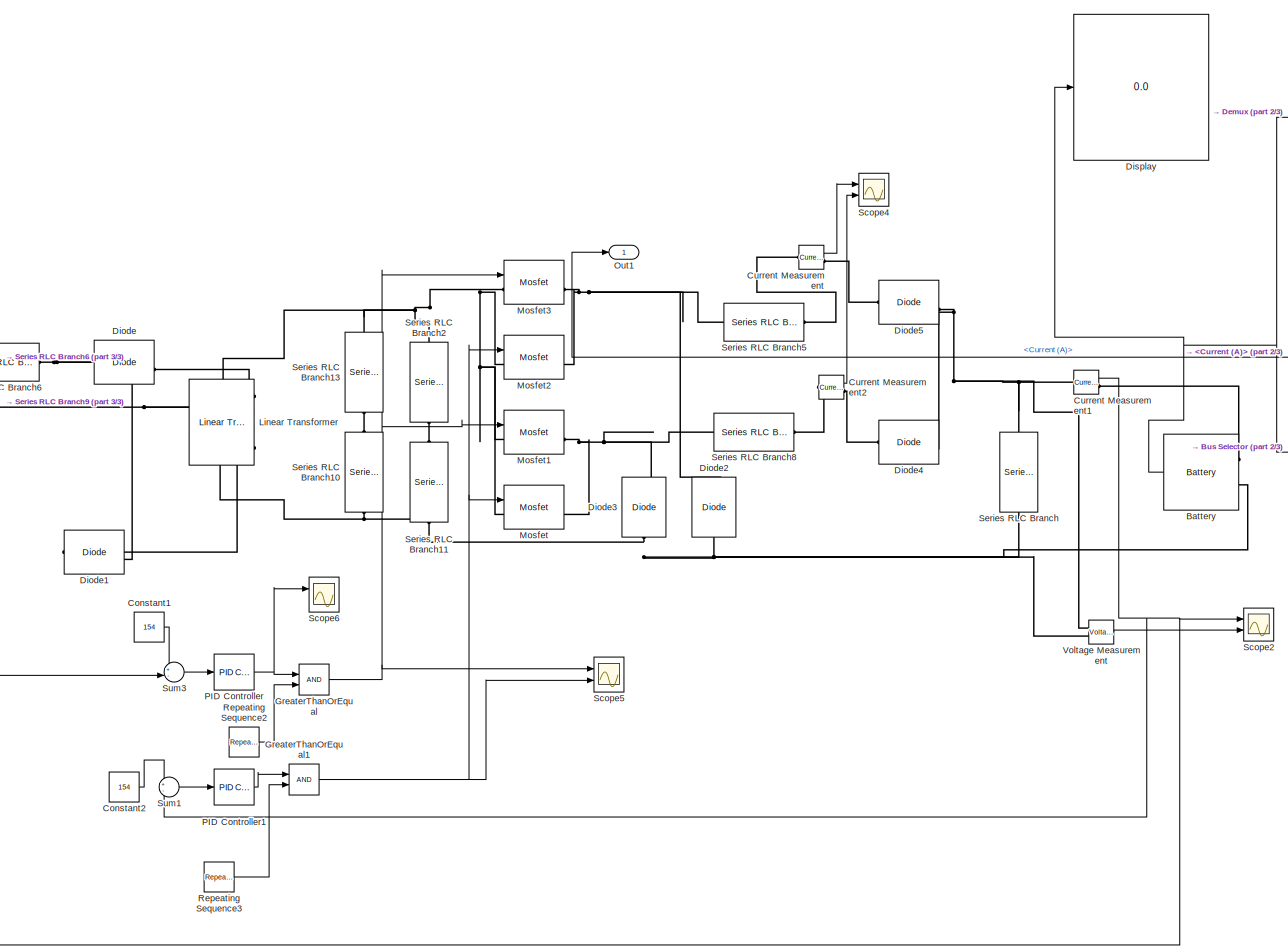
[diagram: VV/gain2 - part 1/3, center side, full height]
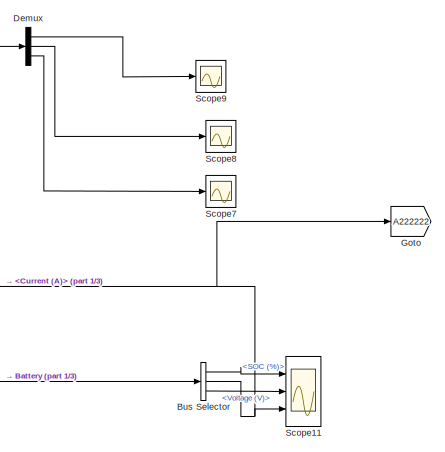
[diagram: VV/gain2 - part 2/3, top right region]
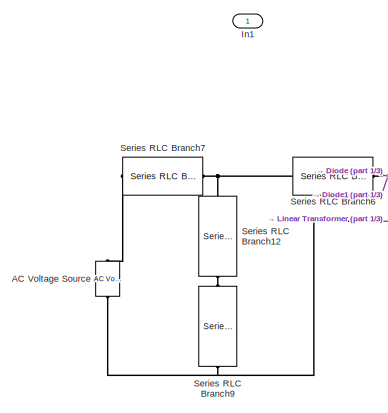
[diagram: VV/gain2 - part 3/3, middle left region]
BLOCK [SubSystem] VV/gain2
  Permissions = NoReadOrWrite
  Ports = [1, 1]
  RequestExecContextInheritance = off
BLOCK [Reference] VV/gain2/AC Voltage Source  REF=spsACVoltageSourceLib/AC Voltage Source
  Ports = [0, 0, 0, 0, 0, 1, 1]
  SourceBlock = spsACVoltageSourceLib/AC Voltage Source
  SourceProductBaseCode = PS
  SourceType = AC Voltage Source
BLOCK [Reference] VV/gain2/Battery  REF=spsBatteryLib/Battery
  Ports = [0, 1, 0, 0, 0, 2]
  SourceBlock = spsBatteryLib/Battery
  SourceProductBaseCode = PS
  SourceType = Battery
BLOCK [BusSelector] VV/gain2/Bus Selector
  OutputSignals = SOC (%),Current (A),Voltage (V)
  Ports = [1, 3]
BLOCK [Constant] VV/gain2/Constant1
  Value = 154
BLOCK [Constant] VV/gain2/Constant2
  Value = 154
BLOCK [Reference] VV/gain2/Current Measurement  REF=spsCurrentMeasurementLib/Current Measurement
  Ports = [0, 1, 0, 0, 0, 1, 1]
  SourceBlock = spsCurrentMeasurementLib/Current Measurement
  SourceProductBaseCode = PS
  SourceType = Current Measurement
  UserDataPersistent = on
BLOCK [Reference] VV/gain2/Current Measurement1  REF=spsCurrentMeasurementLib/Current Measurement
  Ports = [0, 1, 0, 0, 0, 1, 1]
  SourceBlock = spsCurrentMeasurementLib/Current Measurement
  SourceProductBaseCode = PS
  SourceType = Current Measurement
  UserDataPersistent = on
BLOCK [Reference] VV/gain2/Current Measurement2  REF=spsCurrentMeasurementLib/Current Measurement
  Ports = [0, 1, 0, 0, 0, 1, 1]
  SourceBlock = spsCurrentMeasurementLib/Current Measurement
  SourceProductBaseCode = PS
  SourceType = Current Measurement
  UserDataPersistent = on
BLOCK [Demux] VV/gain2/Demux
  Outputs = 3
  Ports = [1, 3]
BLOCK [Reference] VV/gain2/Diode  REF=spsDiodeLib/Diode
  Ports = [0, 1, 0, 0, 0, 1, 1]
  SourceBlock = spsDiodeLib/Diode
  SourceProductBaseCode = PS
  SourceType = Diode
BLOCK [Reference] VV/gain2/Diode1  REF=spsDiodeLib/Diode
  NameLocation = top
  Ports = [0, 1, 0, 0, 0, 1, 1]
  SourceBlock = spsDiodeLib/Diode
  SourceProductBaseCode = PS
  SourceType = Diode
BLOCK [Reference] VV/gain2/Diode2  REF=spsDiodeLib/Diode
  NameLocation = right
  Ports = [0, 1, 0, 0, 0, 1, 1]
  SourceBlock = spsDiodeLib/Diode
  SourceProductBaseCode = PS
  SourceType = Diode
BLOCK [Reference] VV/gain2/Diode3  REF=spsDiodeLib/Diode
  NameLocation = right
  Ports = [0, 1, 0, 0, 0, 1, 1]
  SourceBlock = spsDiodeLib/Diode
  SourceProductBaseCode = PS
  SourceType = Diode
BLOCK [Reference] VV/gain2/Diode4  REF=spsDiodeLib/Diode
  Ports = [0, 1, 0, 0, 0, 1, 1]
  SourceBlock = spsDiodeLib/Diode
  SourceProductBaseCode = PS
  SourceType = Diode
BLOCK [Reference] VV/gain2/Diode5  REF=spsDiodeLib/Diode
  Ports = [0, 1, 0, 0, 0, 1, 1]
  SourceBlock = spsDiodeLib/Diode
  SourceProductBaseCode = PS
  SourceType = Diode
BLOCK [Display] VV/gain2/Display
  Decimation = 1
  Ports = [1]
BLOCK [Goto] VV/gain2/Goto
  GotoTag = A222222
  TagVisibility = global
BLOCK [RelationalOperator] VV/gain2/GreaterThanOrEqual
  InputSameDT = off
  OutDataTypeStr = boolean
  Ports = [2, 1]
  RndMeth = Simplest
BLOCK [RelationalOperator] VV/gain2/GreaterThanOrEqual1
  InputSameDT = off
  OutDataTypeStr = boolean
  Ports = [2, 1]
  RndMeth = Simplest
BLOCK [Inport] VV/gain2/In1
BLOCK [Reference] VV/gain2/Linear Transformer  REF=spsLinearTransformerLib/Linear Transformer
  NameLocation = top
  Ports = [0, 0, 0, 0, 0, 2, 4]
  SourceBlock = spsLinearTransformerLib/Linear Transformer
  SourceProductBaseCode = PS
  SourceType = Linear Transformer
BLOCK [Reference] VV/gain2/Mosfet  REF=spsMosfetLib/Mosfet
  Ports = [1, 1, 0, 0, 0, 1, 1]
  SourceBlock = spsMosfetLib/Mosfet
  SourceProductBaseCode = PS
  SourceType = Mosfet
BLOCK [Reference] VV/gain2/Mosfet1  REF=spsMosfetLib/Mosfet
  Ports = [1, 1, 0, 0, 0, 1, 1]
  SourceBlock = spsMosfetLib/Mosfet
  SourceProductBaseCode = PS
  SourceType = Mosfet
BLOCK [Reference] VV/gain2/Mosfet2  REF=spsMosfetLib/Mosfet
  Ports = [1, 1, 0, 0, 0, 1, 1]
  SourceBlock = spsMosfetLib/Mosfet
  SourceProductBaseCode = PS
  SourceType = Mosfet
BLOCK [Reference] VV/gain2/Mosfet3  REF=spsMosfetLib/Mosfet
  Ports = [1, 1, 0, 0, 0, 1, 1]
  SourceBlock = spsMosfetLib/Mosfet
  SourceProductBaseCode = PS
  SourceType = Mosfet
BLOCK [Outport] VV/gain2/Out1
BLOCK [Reference] VV/gain2/PID Controller  REF=pid_lib/PID Controller
  Ports = [1, 1]
  SourceBlock = pid_lib/PID Controller
  SourceProductBaseCode = SL
  SourceType = PID 1dof
BLOCK [Reference] VV/gain2/PID Controller1  REF=pid_lib/PID Controller
  Ports = [1, 1]
  SourceBlock = pid_lib/PID Controller
  SourceProductBaseCode = SL
  SourceType = PID 1dof
BLOCK [Reference] VV/gain2/Repeating Sequence2  REF=simulink/Sources/Repeating
Sequence
  Ports = [0, 1]
  SourceBlock = simulink/Sources/Repeating\nSequence
  SourceProductBaseCode = SL
  SourceType = Repeating table
BLOCK [Reference] VV/gain2/Repeating Sequence3  REF=simulink/Sources/Repeating
Sequence
  Ports = [0, 1]
  SourceBlock = simulink/Sources/Repeating\nSequence
  SourceProductBaseCode = SL
  SourceType = Repeating table
BLOCK [Scope] VV/gain2/Scope11
  Floating = off
  NumInputPorts = 3
  Ports = [3]
  ScopeSpecificationString = Simulink.scopes.TimeScopeBlockCfg('CurrentConfiguration', extmgr.ConfigurationSet(extmgr.Configuration('Core','General UI',true,'FigureColor',[1 1 1]),extmgr.Configuration('Core','Source UI',true),extmgr.Configuration('Sources','WiredSimulink',true,'DataLoggingVariableName','ScopeData33'),extmgr.Configuration('Visuals','Time Domain',true,'SerializedDisplays',{struct('MinYLimReal','59.99475','MaxYL...<+3139ch>
BLOCK [Scope] VV/gain2/Scope2
  Floating = off
  NumInputPorts = 2
  Ports = [2]
  ScopeSpecificationString = Simulink.scopes.TimeScopeBlockCfg('CurrentConfiguration', extmgr.ConfigurationSet(extmgr.Configuration('Core','General UI',true),extmgr.Configuration('Core','Source UI',true),extmgr.Configuration('Sources','WiredSimulink',true,'DataLoggingVariableName','ScopeData34'),extmgr.Configuration('Visuals','Time Domain',true,'SerializedDisplays',{struct('MinYLimReal','-24.23531','MaxYLimReal','227.49228','...<+2172ch>
BLOCK [Scope] VV/gain2/Scope4
  Floating = off
  NumInputPorts = 2
  Ports = [2]
  ScopeSpecificationString = Simulink.scopes.TimeScopeBlockCfg('CurrentConfiguration', extmgr.ConfigurationSet(extmgr.Configuration('Core','General UI',true),extmgr.Configuration('Core','Source UI',true),extmgr.Configuration('Sources','WiredSimulink',true,'DataLoggingVariableName','ScopeData35'),extmgr.Configuration('Visuals','Time Domain',true,'SerializedDisplays',{struct('MinYLimReal','-13.71108','MaxYLimReal','122.41334','...<+2157ch>
BLOCK [Scope] VV/gain2/Scope5
  Floating = off
  NumInputPorts = 2
  Ports = [2]
  ScopeSpecificationString = Simulink.scopes.TimeScopeBlockCfg('CurrentConfiguration', extmgr.ConfigurationSet(extmgr.Configuration('Core','General UI',true),extmgr.Configuration('Core','Source UI',true),extmgr.Configuration('Sources','WiredSimulink',true,'DataLoggingVariableName','ScopeData36'),extmgr.Configuration('Visuals','Time Domain',true,'SerializedDisplays',{struct('MinYLimReal','-0.125','MaxYLimReal','1.125','YLabelR...<+2099ch>
BLOCK [Scope] VV/gain2/Scope6
  Floating = off
  NumInputPorts = 2
  Ports = [2]
  ScopeSpecificationString = Simulink.scopes.TimeScopeBlockCfg('CurrentConfiguration', extmgr.ConfigurationSet(extmgr.Configuration('Core','General UI',true),extmgr.Configuration('Core','Source UI',true),extmgr.Configuration('Sources','WiredSimulink',true,'DataLoggingVariableName','ScopeData37'),extmgr.Configuration('Visuals','Time Domain',true,'SerializedDisplays',{struct('MinYLimReal','-0.125','MaxYLimReal','1.125','YLabelR...<+1535ch>
BLOCK [Scope] VV/gain2/Scope7
  Floating = off
  NumInputPorts = 1
  Ports = [1]
  ScopeSpecificationString = Simulink.scopes.TimeScopeBlockCfg('CurrentConfiguration', extmgr.ConfigurationSet(extmgr.Configuration('Core','General UI',true),extmgr.Configuration('Core','Source UI',true),extmgr.Configuration('Sources','WiredSimulink',true,'DataLoggingVariableName','ScopeData38','DataLogging',true),extmgr.Configuration('Visuals','Time Domain',true,'SerializedDisplays',{struct('MinYLimReal','-15.26027','MaxYLim...<+1494ch>
BLOCK [Scope] VV/gain2/Scope8
  Floating = off
  NumInputPorts = 1
  Ports = [1]
  ScopeSpecificationString = Simulink.scopes.TimeScopeBlockCfg('CurrentConfiguration', extmgr.ConfigurationSet(extmgr.Configuration('Core','General UI',true),extmgr.Configuration('Core','Source UI',true),extmgr.Configuration('Sources','WiredSimulink',true,'DataLoggingVariableName','ScopeData39','DataLogging',true),extmgr.Configuration('Visuals','Time Domain',true,'SerializedDisplays',{struct('MinYLimReal','-1621.83369','MaxYL...<+1504ch>
BLOCK [Scope] VV/gain2/Scope9
  Floating = off
  NumInputPorts = 1
  Ports = [1]
  ScopeSpecificationString = Simulink.scopes.TimeScopeBlockCfg('CurrentConfiguration', extmgr.ConfigurationSet(extmgr.Configuration('Core','General UI',true),extmgr.Configuration('Core','Source UI',true),extmgr.Configuration('Sources','WiredSimulink',true,'DataLoggingVariableName','ScopeData40','DataLogging',true),extmgr.Configuration('Visuals','Time Domain',true,'SerializedDisplays',{struct('MinYLimReal','-15.26027','MaxYLim...<+1494ch>
BLOCK [Reference] VV/gain2/Series RLC Branch  REF=spsSeriesRLCBranchLib/Series RLC Branch
  NameLocation = left
  Ports = [0, 0, 0, 0, 0, 1, 1]
  SourceBlock = spsSeriesRLCBranchLib/Series RLC Branch
  SourceProductBaseCode = PS
  SourceType = Series RLC Branch
BLOCK [Reference] VV/gain2/Series RLC Branch10  REF=spsSeriesRLCBranchLib/Series RLC Branch
  NameLocation = left
  Ports = [0, 0, 0, 0, 0, 1, 1]
  SourceBlock = spsSeriesRLCBranchLib/Series RLC Branch
  SourceProductBaseCode = PS
  SourceType = Series RLC Branch
BLOCK [Reference] VV/gain2/Series RLC Branch11  REF=spsSeriesRLCBranchLib/Series RLC Branch
  NameLocation = left
  Ports = [0, 0, 0, 0, 0, 1, 1]
  SourceBlock = spsSeriesRLCBranchLib/Series RLC Branch
  SourceProductBaseCode = PS
  SourceType = Series RLC Branch
BLOCK [Reference] VV/gain2/Series RLC Branch12  REF=spsSeriesRLCBranchLib/Series RLC Branch
  NameLocation = left
  Ports = [0, 0, 0, 0, 0, 1, 1]
  SourceBlock = spsSeriesRLCBranchLib/Series RLC Branch
  SourceProductBaseCode = PS
  SourceType = Series RLC Branch
BLOCK [Reference] VV/gain2/Series RLC Branch13  REF=spsSeriesRLCBranchLib/Series RLC Branch
  NameLocation = left
  Ports = [0, 0, 0, 0, 0, 1, 1]
  SourceBlock = spsSeriesRLCBranchLib/Series RLC Branch
  SourceProductBaseCode = PS
  SourceType = Series RLC Branch
BLOCK [Reference] VV/gain2/Series RLC Branch2  REF=spsSeriesRLCBranchLib/Series RLC Branch
  NameLocation = left
  Ports = [0, 0, 0, 0, 0, 1, 1]
  SourceBlock = spsSeriesRLCBranchLib/Series RLC Branch
  SourceProductBaseCode = PS
  SourceType = Series RLC Branch
BLOCK [Reference] VV/gain2/Series RLC Branch5  REF=spsSeriesRLCBranchLib/Series RLC Branch
  Ports = [0, 0, 0, 0, 0, 1, 1]
  SourceBlock = spsSeriesRLCBranchLib/Series RLC Branch
  SourceProductBaseCode = PS
  SourceType = Series RLC Branch
BLOCK [Reference] VV/gain2/Series RLC Branch6  REF=spsSeriesRLCBranchLib/Series RLC Branch
  Ports = [0, 0, 0, 0, 0, 1, 1]
  SourceBlock = spsSeriesRLCBranchLib/Series RLC Branch
  SourceProductBaseCode = PS
  SourceType = Series RLC Branch
BLOCK [Reference] VV/gain2/Series RLC Branch7  REF=spsSeriesRLCBranchLib/Series RLC Branch
  Ports = [0, 0, 0, 0, 0, 1, 1]
  SourceBlock = spsSeriesRLCBranchLib/Series RLC Branch
  SourceProductBaseCode = PS
  SourceType = Series RLC Branch
BLOCK [Reference] VV/gain2/Series RLC Branch8  REF=spsSeriesRLCBranchLib/Series RLC Branch
  Ports = [0, 0, 0, 0, 0, 1, 1]
  SourceBlock = spsSeriesRLCBranchLib/Series RLC Branch
  SourceProductBaseCode = PS
  SourceType = Series RLC Branch
BLOCK [Reference] VV/gain2/Series RLC Branch9  REF=spsSeriesRLCBranchLib/Series RLC Branch
  NameLocation = left
  Ports = [0, 0, 0, 0, 0, 1, 1]
  SourceBlock = spsSeriesRLCBranchLib/Series RLC Branch
  SourceProductBaseCode = PS
  SourceType = Series RLC Branch
BLOCK [Sum] VV/gain2/Sum1
  Inputs = +-
  Ports = [2, 1]
BLOCK [Sum] VV/gain2/Sum3
  Inputs = +-
  Ports = [2, 1]
BLOCK [Reference] VV/gain2/Voltage Measurement  REF=spsVoltageMeasurementLib/Voltage Measurement
  Ports = [0, 1, 0, 0, 0, 2]
  SourceBlock = spsVoltageMeasurementLib/Voltage Measurement
  SourceProductBaseCode = PS
  SourceType = Voltage Measurement
  UserDataPersistent = on
BLOCK [SubSystem] Vb
  CloseFcn = sps_rtmsupport('CloseFcn',gcbh);
  CopyFcn = sps_rtmsupport('CopyFcn',gcbh); powericon('psbloadfunction',gcb,'Measurement Block','UpdateGotoTag');
  DeleteFcn = sps_rtmsupport('DeleteFcn',gcbh);
  DialogController = POWERSYS.PowerSysDialog
  LoadFcn = sps_rtmsupport('LoadFcn',gcbh);
  ModelCloseFcn = sps_rtmsupport('ModelCloseFcn',gcbh);
  OpenFcn = sps_rtmsupport('OpenFcn',gcbh, [1 -2]);
  Ports = [0, 1, 0, 0, 0, 2]
  PostSaveFcn = sps_rtmsupport('PostSaveFcn',gcbh);
  PreCopyFcn = sps_rtmsupport('PreCopyFcn',gcbh);
  PreDeleteFcn = sps_rtmsupport('PreDeleteFcn',gcbh);
  PreSaveFcn = sps_rtmsupport('PreSaveFcn',gcbh);
  RequestExecContextInheritance = off
  StartFcn = sps_rtmsupport('StartFcn',gcbh);
  StopFcn = sps_rtmsupport('StopFcn',gcbh);
  UndoDeleteFcn = sps_rtmsupport('UndoDeleteFcn',gcbh);
  UserDataPersistent = on
BLOCK [PMIOPort] Vb/+
  Side = Left
BLOCK [PMIOPort] Vb/-
  Port = 2
  Side = Left
BLOCK [Reference] Vb/Model  REF=spsMeasurementModel/Complex
  Ports = [1, 1]
  SourceBlock = spsMeasurementModel/Complex
  SourceProductBaseCode = PS
  SourceType = SubSystem
BLOCK [From] Vb/Source
  GotoTag = Tsevrdaseffgv1
  TagVisibility = global
BLOCK [SubSystem] Vb/Subsystem
  Ports = [0, 0, 0, 0, 0, 1, 1]
  RequestExecContextInheritance = off
BLOCK [PMIOPort] Vb/Subsystem/Conn1
  Side = Left
BLOCK [PMIOPort] Vb/Subsystem/Conn2
  Port = 2
  Side = Right
BLOCK [SubSystem] Vb/Subsystem/Subsystem
  Permissions = NoReadOrWrite
  Ports = [0, 0, 0, 0, 0, 1, 1]
  RequestExecContextInheritance = off
BLOCK [PMIOPort] Vb/Subsystem/Subsystem/Conn1
  Side = Left
BLOCK [PMIOPort] Vb/Subsystem/Subsystem/Conn2
  Port = 2
  Side = Right
BLOCK [Goto] Vb/Subsystem/Subsystem/Goto
  GotoTag = Tsevrdaseffgv1
  TagVisibility = global
BLOCK [Reference] Vb/Subsystem/Subsystem/Series RLC Branch  REF=spsSeriesRLCBranchLib/Series RLC Branch
  Ports = [0, 0, 0, 0, 0, 1, 1]
  SourceBlock = spsSeriesRLCBranchLib/Series RLC Branch
  SourceProductBaseCode = PS
  SourceType = Series RLC Branch
BLOCK [Reference] Vb/Subsystem/Subsystem/Voltage Measurement  REF=spsVoltageMeasurementLib/Voltage Measurement
  Ports = [0, 1, 0, 0, 0, 2]
  SourceBlock = spsVoltageMeasurementLib/Voltage Measurement
  SourceProductBaseCode = PS
  SourceType = Voltage Measurement
  UserDataPersistent = on
BLOCK [SubSystem] Vb/Subsystem/Subsystem/do not delete this gain
  Permissions = NoReadOrWrite
  Ports = [1, 1]
  RequestExecContextInheritance = off
BLOCK [Goto] Vb/Subsystem/Subsystem/do not delete this gain/Goto
  GotoTag = A4444111
  TagVisibility = global
BLOCK [Inport] Vb/Subsystem/Subsystem/do not delete this gain/In1
BLOCK [Outport] Vb/Subsystem/Subsystem/do not delete this gain/Out1
BLOCK [Sin] Vb/Subsystem/Subsystem/do not delete this gain/Sine Wave
  Amplitude = 600
  Frequency = 2*pi*50.2
  Ports = [0, 1]
  SampleTime = 0
BLOCK [Gain] Vb/do not delete this gain
BLOCK [Outport] Vb/v
  InitialOutput = 0
BLOCK [Reference] Voltage Measurement  REF=spsVoltageMeasurementLib/Voltage Measurement
  Ports = [0, 1, 0, 0, 0, 2]
  SourceBlock = spsVoltageMeasurementLib/Voltage Measurement
  SourceProductBaseCode = PS
  SourceType = Voltage Measurement
  UserDataPersistent = on
BLOCK [Reference] powergui  REF=spspowerguiLib/powergui
  Ports = []
  Priority = 1
  SourceBlock = spspowerguiLib/powergui
  SourceProductBaseCode = PS
  SourceType = PSB option menu block
ANNOTATION (root): Current
ANNOTATION (root): Voltage
NET Battery:1 -> Demux:1, Display:1, VV:1
LINE Constant1:1 -> Sum3:1
LINE Constant2:1 -> Sum1:1
NET Current Measurement1:1 -> Scope2:1, Sum1:2, Sum3:2
LINE Current Measurement2:1 -> Scope4:2
LINE Current Measurement:1 -> Scope4:1
LINE Demux:1 -> Scope9:1
LINE Demux:2 -> Scope8:1
LINE Demux:3 -> Scope7:1
LINE Derivative1:1 -> Mux1:2
LINE Derivative2:1 -> Mux2:2
LINE Diode2:1 -> Scope6:1
LINE Fuzzy Logic Controller1:1 -> GreaterThanOrEqual:1
LINE Fuzzy Logic Controller:1 -> GreaterThanOrEqual1:1
NET GreaterThanOrEqual1:1 -> Mosfet2:1, Mosfet:1, Scope5:2
NET GreaterThanOrEqual:1 -> Mosfet1:1, Mosfet3:1, Scope5:1
LINE Ia:1 -> Fig1:1
LINE Mosfet2:1 -> Scope3:1
LINE Mosfet3:1 -> Scope1:1
LINE Mux1:1 -> Fuzzy Logic Controller1:1
LINE Mux2:1 -> Fuzzy Logic Controller:1
LINE Repeating Sequence2:1 -> GreaterThanOrEqual:2
LINE Repeating Sequence3:1 -> GreaterThanOrEqual1:2
NET Sum1:1 -> Derivative2:1, Mux2:1
NET Sum3:1 -> Derivative1:1, Mux1:1
LINE VV/Demux:1 -> VV/gain:1
LINE VV/Demux:2 -> VV/gain1:1
LINE VV/Demux:3 -> VV/gain2:1
LINE VV/In1:1 -> VV/Demux:1
NET VV/gain/Battery:1 -> VV/gain/Bus Selector:1, VV/gain/Demux:1, VV/gain/Display:1
NET VV/gain/Bus Selector:1 -> VV/gain/Scope11:1, VV/gain/Sum:2
LINE VV/gain/Bus Selector:2 -> VV/gain/Scope11:3
LINE VV/gain/Bus Selector:3 -> VV/gain/Scope11:2
LINE VV/gain/Constant1:1 -> VV/gain/Sum3:1
LINE VV/gain/Constant2:1 -> VV/gain/Sum1:1
LINE VV/gain/Constant:1 -> VV/gain/Sum:1
NET VV/gain/Current Measurement1:1 -> VV/gain/Scope2:1, VV/gain/Sum1:2, VV/gain/Sum3:2
LINE VV/gain/Current Measurement2:1 -> VV/gain/Scope4:2
LINE VV/gain/Current Measurement:1 -> VV/gain/Scope4:1
LINE VV/gain/Demux:1 -> VV/gain/Scope9:1
LINE VV/gain/Demux:2 -> VV/gain/Scope8:1
LINE VV/gain/Demux:3 -> VV/gain/Scope7:1
NET VV/gain/GreaterThanOrEqual1:1 -> VV/gain/Mosfet2:1, VV/gain/Mosfet:1, VV/gain/Scope5:2
NET VV/gain/GreaterThanOrEqual:1 -> VV/gain/Mosfet1:1, VV/gain/Mosfet3:1, VV/gain/Scope5:1
LINE VV/gain/PID Controller1:1 -> VV/gain/GreaterThanOrEqual1:1
NET VV/gain/PID Controller:1 -> VV/gain/GreaterThanOrEqual:1, VV/gain/Scope6:1
LINE VV/gain/Repeating Sequence2:1 -> VV/gain/GreaterThanOrEqual:2
LINE VV/gain/Repeating Sequence3:1 -> VV/gain/GreaterThanOrEqual1:2
LINE VV/gain/Sum1:1 -> VV/gain/PID Controller1:1
LINE VV/gain/Sum3:1 -> VV/gain/PID Controller:1
LINE VV/gain/Sum:1 -> VV/gain/Out1:1
LINE VV/gain/Voltage Measurement:1 -> VV/gain/Scope2:2
NET VV/gain1/Battery:1 -> VV/gain1/Bus Selector:1, VV/gain1/Demux:1, VV/gain1/Display:1
LINE VV/gain1/Bus Selector:1 -> VV/gain1/Scope11:1
LINE VV/gain1/Bus Selector:2 -> VV/gain1/Scope11:3
NET VV/gain1/Bus Selector:3 -> VV/gain1/Out1:1, VV/gain1/Scope11:2
LINE VV/gain1/Constant1:1 -> VV/gain1/Sum3:1
LINE VV/gain1/Constant2:1 -> VV/gain1/Sum1:1
NET VV/gain1/Current Measurement1:1 -> VV/gain1/Scope2:1, VV/gain1/Sum1:2, VV/gain1/Sum3:2
LINE VV/gain1/Current Measurement2:1 -> VV/gain1/Scope4:2
LINE VV/gain1/Current Measurement:1 -> VV/gain1/Scope4:1
LINE VV/gain1/Demux:1 -> VV/gain1/Scope9:1
LINE VV/gain1/Demux:2 -> VV/gain1/Scope8:1
LINE VV/gain1/Demux:3 -> VV/gain1/Scope7:1
NET VV/gain1/GreaterThanOrEqual1:1 -> VV/gain1/Mosfet2:1, VV/gain1/Mosfet:1, VV/gain1/Scope5:2
NET VV/gain1/GreaterThanOrEqual:1 -> VV/gain1/Mosfet1:1, VV/gain1/Mosfet3:1, VV/gain1/Scope5:1
LINE VV/gain1/PID Controller1:1 -> VV/gain1/GreaterThanOrEqual1:1
NET VV/gain1/PID Controller:1 -> VV/gain1/GreaterThanOrEqual:1, VV/gain1/Scope6:1
LINE VV/gain1/Repeating Sequence2:1 -> VV/gain1/GreaterThanOrEqual:2
LINE VV/gain1/Repeating Sequence3:1 -> VV/gain1/GreaterThanOrEqual1:2
LINE VV/gain1/Sum1:1 -> VV/gain1/PID Controller1:1
LINE VV/gain1/Sum3:1 -> VV/gain1/PID Controller:1
LINE VV/gain1/Voltage Measurement:1 -> VV/gain1/Scope2:2
LINE VV/gain1:1 -> VV/Out2:1
NET VV/gain2/Battery:1 -> VV/gain2/Bus Selector:1, VV/gain2/Demux:1, VV/gain2/Display:1
LINE VV/gain2/Bus Selector:1 -> VV/gain2/Scope11:1
NET VV/gain2/Bus Selector:2 -> VV/gain2/Goto:1, VV/gain2/Out1:1, VV/gain2/Scope11:3
LINE VV/gain2/Bus Selector:3 -> VV/gain2/Scope11:2
LINE VV/gain2/Constant1:1 -> VV/gain2/Sum3:1
LINE VV/gain2/Constant2:1 -> VV/gain2/Sum1:1
NET VV/gain2/Current Measurement1:1 -> VV/gain2/Scope2:1, VV/gain2/Sum1:2, VV/gain2/Sum3:2
LINE VV/gain2/Current Measurement2:1 -> VV/gain2/Scope4:2
LINE VV/gain2/Current Measurement:1 -> VV/gain2/Scope4:1
LINE VV/gain2/Demux:1 -> VV/gain2/Scope9:1
LINE VV/gain2/Demux:2 -> VV/gain2/Scope8:1
LINE VV/gain2/Demux:3 -> VV/gain2/Scope7:1
NET VV/gain2/GreaterThanOrEqual1:1 -> VV/gain2/Mosfet2:1, VV/gain2/Mosfet:1, VV/gain2/Scope5:2
NET VV/gain2/GreaterThanOrEqual:1 -> VV/gain2/Mosfet1:1, VV/gain2/Mosfet3:1, VV/gain2/Scope5:1
LINE VV/gain2/PID Controller1:1 -> VV/gain2/GreaterThanOrEqual1:1
NET VV/gain2/PID Controller:1 -> VV/gain2/GreaterThanOrEqual:1, VV/gain2/Scope6:1
LINE VV/gain2/Repeating Sequence2:1 -> VV/gain2/GreaterThanOrEqual:2
LINE VV/gain2/Repeating Sequence3:1 -> VV/gain2/GreaterThanOrEqual1:2
LINE VV/gain2/Sum1:1 -> VV/gain2/PID Controller1:1
LINE VV/gain2/Sum3:1 -> VV/gain2/PID Controller:1
LINE VV/gain2/Voltage Measurement:1 -> VV/gain2/Scope2:2
LINE VV/gain2:1 -> VV/Out3:1
LINE VV/gain:1 -> VV/Out1:1
LINE VV:1 -> Scope11:1
LINE VV:2 -> Scope11:2
LINE VV:3 -> Scope11:3
LINE Vb:1 -> Fig14:1
LINE Voltage Measurement:1 -> Scope2:2
PNET net1: AC Voltage Source:LConn1 -- Linear Transformer:RConn2 -- Linear Transformer:RConn3 -- Series RLC Branch9:RConn1 -- Vb:LConn2
PLINE AC Voltage Source:RConn1 -- Series RLC Branch7:LConn1
PLINE Battery:LConn1 -- Current Measurement1:RConn1
PNET net2: Battery:LConn2 -- Diode2:LConn1 -- Diode3:LConn1 -- Linear Transformer:LConn1 -- Series RLC Branch10:RConn1 -- Series RLC Branch11:RConn1 -- Series RLC Branch:RConn1 -- Voltage Measurement:LConn2
PNET net3: Current Measurement1:LConn1 -- Diode4:RConn1 -- Diode5:RConn1 -- Series RLC Branch:LConn1 -- Voltage Measurement:LConn1
PLINE Current Measurement2:LConn1 -- Series RLC Branch8:RConn1
PLINE Current Measurement2:RConn1 -- Diode4:LConn1
PLINE Current Measurement:LConn1 -- Series RLC Branch5:RConn1
PLINE Current Measurement:RConn1 -- Diode5:LConn1
PLINE Diode1:LConn1 -- Linear Transformer:RConn1
PNET net4: Diode1:RConn1 -- Diode:LConn1 -- Series RLC Branch6:RConn1
PNET net5: Diode2:RConn1 -- Mosfet2:RConn1 -- Mosfet3:RConn1 -- Series RLC Branch5:LConn1
PNET net6: Diode3:RConn1 -- Mosfet1:RConn1 -- Mosfet:RConn1 -- Series RLC Branch8:LConn1
PLINE Diode:RConn1 -- Linear Transformer:RConn4
PNET net7: Ia:LConn1 -- Series RLC Branch12:LConn1 -- Series RLC Branch7:RConn1
PNET net8: Ia:RConn1 -- Series RLC Branch6:LConn1 -- Vb:LConn1
PNET net9: Linear Transformer:LConn2 -- Mosfet1:LConn1 -- Mosfet2:LConn1 -- Mosfet3:LConn1 -- Mosfet:LConn1 -- Series RLC Branch13:LConn1 -- Series RLC Branch2:LConn1
PLINE Series RLC Branch10:LConn1 -- Series RLC Branch13:RConn1
PLINE Series RLC Branch11:LConn1 -- Series RLC Branch2:RConn1
PLINE Series RLC Branch12:RConn1 -- Series RLC Branch9:LConn1
PNET net10: VV/gain/AC Voltage Source:LConn1 -- VV/gain/Linear Transformer:RConn2 -- VV/gain/Linear Transformer:RConn3 -- VV/gain/Series RLC Branch9:RConn1
PLINE VV/gain/AC Voltage Source:RConn1 -- VV/gain/Series RLC Branch7:LConn1
PLINE VV/gain/Battery:LConn1 -- VV/gain/Current Measurement1:RConn1
PNET net11: VV/gain/Battery:LConn2 -- VV/gain/Diode2:LConn1 -- VV/gain/Diode3:LConn1 -- VV/gain/Linear Transformer:LConn1 -- VV/gain/Series RLC Branch10:RConn1 -- VV/gain/Series RLC Branch11:RConn1 -- VV/gain/Series RLC Branch:RConn1 -- VV/gain/Voltage Measurement:LConn2
PNET net12: VV/gain/Current Measurement1:LConn1 -- VV/gain/Diode4:RConn1 -- VV/gain/Diode5:RConn1 -- VV/gain/Series RLC Branch:LConn1 -- VV/gain/Voltage Measurement:LConn1
PLINE VV/gain/Current Measurement2:LConn1 -- VV/gain/Series RLC Branch8:RConn1
PLINE VV/gain/Current Measurement2:RConn1 -- VV/gain/Diode4:LConn1
PLINE VV/gain/Current Measurement:LConn1 -- VV/gain/Series RLC Branch5:RConn1
PLINE VV/gain/Current Measurement:RConn1 -- VV/gain/Diode5:LConn1
PLINE VV/gain/Diode1:LConn1 -- VV/gain/Linear Transformer:RConn1
PNET net13: VV/gain/Diode1:RConn1 -- VV/gain/Diode:LConn1 -- VV/gain/Series RLC Branch6:RConn1
PNET net14: VV/gain/Diode2:RConn1 -- VV/gain/Mosfet2:RConn1 -- VV/gain/Mosfet3:RConn1 -- VV/gain/Series RLC Branch5:LConn1
PNET net15: VV/gain/Diode3:RConn1 -- VV/gain/Mosfet1:RConn1 -- VV/gain/Mosfet:RConn1 -- VV/gain/Series RLC Branch8:LConn1
PLINE VV/gain/Diode:RConn1 -- VV/gain/Linear Transformer:RConn4
PNET net16: VV/gain/Linear Transformer:LConn2 -- VV/gain/Mosfet1:LConn1 -- VV/gain/Mosfet2:LConn1 -- VV/gain/Mosfet3:LConn1 -- VV/gain/Mosfet:LConn1 -- VV/gain/Series RLC Branch13:LConn1 -- VV/gain/Series RLC Branch2:LConn1
PLINE VV/gain/Series RLC Branch10:LConn1 -- VV/gain/Series RLC Branch13:RConn1
PLINE VV/gain/Series RLC Branch11:LConn1 -- VV/gain/Series RLC Branch2:RConn1
PNET net17: VV/gain/Series RLC Branch12:LConn1 -- VV/gain/Series RLC Branch6:LConn1 -- VV/gain/Series RLC Branch7:RConn1
PLINE VV/gain/Series RLC Branch12:RConn1 -- VV/gain/Series RLC Branch9:LConn1
PNET net18: VV/gain1/AC Voltage Source:LConn1 -- VV/gain1/Linear Transformer:RConn2 -- VV/gain1/Linear Transformer:RConn3 -- VV/gain1/Series RLC Branch9:RConn1
PLINE VV/gain1/AC Voltage Source:RConn1 -- VV/gain1/Series RLC Branch7:LConn1
PLINE VV/gain1/Battery:LConn1 -- VV/gain1/Current Measurement1:RConn1
PNET net19: VV/gain1/Battery:LConn2 -- VV/gain1/Diode2:LConn1 -- VV/gain1/Diode3:LConn1 -- VV/gain1/Linear Transformer:LConn1 -- VV/gain1/Series RLC Branch10:RConn1 -- VV/gain1/Series RLC Branch11:RConn1 -- VV/gain1/Series RLC Branch:RConn1 -- VV/gain1/Voltage Measurement:LConn2
PNET net20: VV/gain1/Current Measurement1:LConn1 -- VV/gain1/Diode4:RConn1 -- VV/gain1/Diode5:RConn1 -- VV/gain1/Series RLC Branch:LConn1 -- VV/gain1/Voltage Measurement:LConn1
PLINE VV/gain1/Current Measurement2:LConn1 -- VV/gain1/Series RLC Branch8:RConn1
PLINE VV/gain1/Current Measurement2:RConn1 -- VV/gain1/Diode4:LConn1
PLINE VV/gain1/Current Measurement:LConn1 -- VV/gain1/Series RLC Branch5:RConn1
PLINE VV/gain1/Current Measurement:RConn1 -- VV/gain1/Diode5:LConn1
PLINE VV/gain1/Diode1:LConn1 -- VV/gain1/Linear Transformer:RConn1
PNET net21: VV/gain1/Diode1:RConn1 -- VV/gain1/Diode:LConn1 -- VV/gain1/Series RLC Branch6:RConn1
PNET net22: VV/gain1/Diode2:RConn1 -- VV/gain1/Mosfet2:RConn1 -- VV/gain1/Mosfet3:RConn1 -- VV/gain1/Series RLC Branch5:LConn1
PNET net23: VV/gain1/Diode3:RConn1 -- VV/gain1/Mosfet1:RConn1 -- VV/gain1/Mosfet:RConn1 -- VV/gain1/Series RLC Branch8:LConn1
PLINE VV/gain1/Diode:RConn1 -- VV/gain1/Linear Transformer:RConn4
PNET net24: VV/gain1/Linear Transformer:LConn2 -- VV/gain1/Mosfet1:LConn1 -- VV/gain1/Mosfet2:LConn1 -- VV/gain1/Mosfet3:LConn1 -- VV/gain1/Mosfet:LConn1 -- VV/gain1/Series RLC Branch13:LConn1 -- VV/gain1/Series RLC Branch2:LConn1
PLINE VV/gain1/Series RLC Branch10:LConn1 -- VV/gain1/Series RLC Branch13:RConn1
PLINE VV/gain1/Series RLC Branch11:LConn1 -- VV/gain1/Series RLC Branch2:RConn1
PNET net25: VV/gain1/Series RLC Branch12:LConn1 -- VV/gain1/Series RLC Branch6:LConn1 -- VV/gain1/Series RLC Branch7:RConn1
PLINE VV/gain1/Series RLC Branch12:RConn1 -- VV/gain1/Series RLC Branch9:LConn1
PNET net26: VV/gain2/AC Voltage Source:LConn1 -- VV/gain2/Linear Transformer:RConn2 -- VV/gain2/Linear Transformer:RConn3 -- VV/gain2/Series RLC Branch9:RConn1
PLINE VV/gain2/AC Voltage Source:RConn1 -- VV/gain2/Series RLC Branch7:LConn1
PLINE VV/gain2/Battery:LConn1 -- VV/gain2/Current Measurement1:RConn1
PNET net27: VV/gain2/Battery:LConn2 -- VV/gain2/Diode2:LConn1 -- VV/gain2/Diode3:LConn1 -- VV/gain2/Linear Transformer:LConn1 -- VV/gain2/Series RLC Branch10:RConn1 -- VV/gain2/Series RLC Branch11:RConn1 -- VV/gain2/Series RLC Branch:RConn1 -- VV/gain2/Voltage Measurement:LConn2
PNET net28: VV/gain2/Current Measurement1:LConn1 -- VV/gain2/Diode4:RConn1 -- VV/gain2/Diode5:RConn1 -- VV/gain2/Series RLC Branch:LConn1 -- VV/gain2/Voltage Measurement:LConn1
PLINE VV/gain2/Current Measurement2:LConn1 -- VV/gain2/Series RLC Branch8:RConn1
PLINE VV/gain2/Current Measurement2:RConn1 -- VV/gain2/Diode4:LConn1
PLINE VV/gain2/Current Measurement:LConn1 -- VV/gain2/Series RLC Branch5:RConn1
PLINE VV/gain2/Current Measurement:RConn1 -- VV/gain2/Diode5:LConn1
PLINE VV/gain2/Diode1:LConn1 -- VV/gain2/Linear Transformer:RConn1
PNET net29: VV/gain2/Diode1:RConn1 -- VV/gain2/Diode:LConn1 -- VV/gain2/Series RLC Branch6:RConn1
PNET net30: VV/gain2/Diode2:RConn1 -- VV/gain2/Mosfet2:RConn1 -- VV/gain2/Mosfet3:RConn1 -- VV/gain2/Series RLC Branch5:LConn1
PNET net31: VV/gain2/Diode3:RConn1 -- VV/gain2/Mosfet1:RConn1 -- VV/gain2/Mosfet:RConn1 -- VV/gain2/Series RLC Branch8:LConn1
PLINE VV/gain2/Diode:RConn1 -- VV/gain2/Linear Transformer:RConn4
PNET net32: VV/gain2/Linear Transformer:LConn2 -- VV/gain2/Mosfet1:LConn1 -- VV/gain2/Mosfet2:LConn1 -- VV/gain2/Mosfet3:LConn1 -- VV/gain2/Mosfet:LConn1 -- VV/gain2/Series RLC Branch13:LConn1 -- VV/gain2/Series RLC Branch2:LConn1
PLINE VV/gain2/Series RLC Branch10:LConn1 -- VV/gain2/Series RLC Branch13:RConn1
PLINE VV/gain2/Series RLC Branch11:LConn1 -- VV/gain2/Series RLC Branch2:RConn1
PNET net33: VV/gain2/Series RLC Branch12:LConn1 -- VV/gain2/Series RLC Branch6:LConn1 -- VV/gain2/Series RLC Branch7:RConn1
PLINE VV/gain2/Series RLC Branch12:RConn1 -- VV/gain2/Series RLC Branch9:LConn1
note: NET lines group one-source signal fan-out (src -> all destinations, sorted); 1:1 wires keep LINE; PNET lines group multi-terminal physical nets as a canonical sorted terminal list (undirected conserving connections); 2-terminal nets keep the pairwise PLINE form
